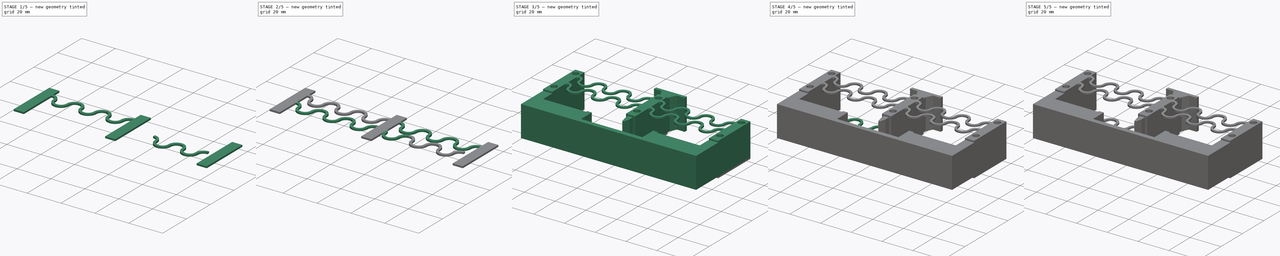
[diagram: build sequence overview — one tinted view per stage of 5, left to right]
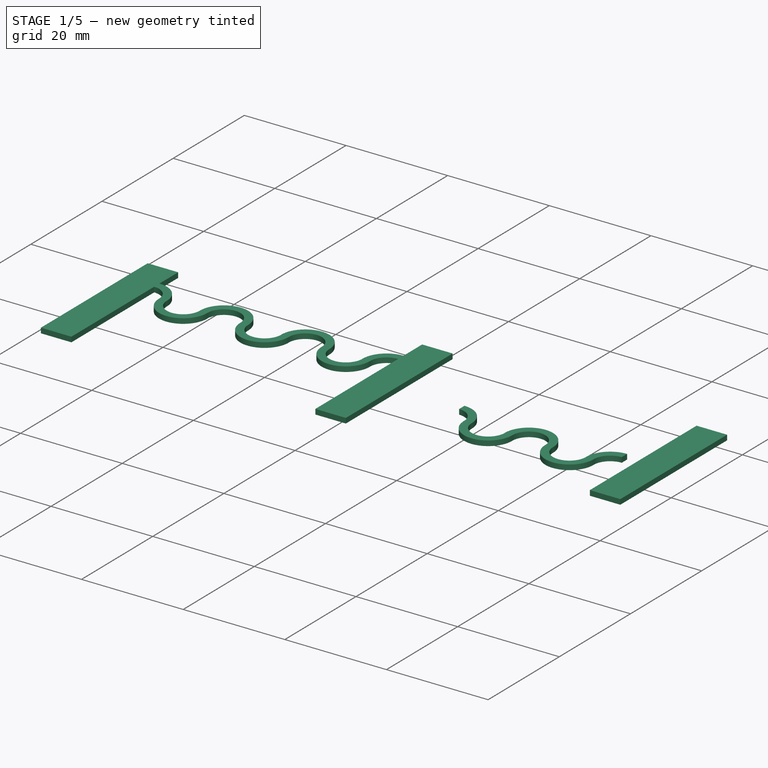
[diagram: stage 1 of 5 — iso view after this stage's code; geometry added in this stage tinted green]
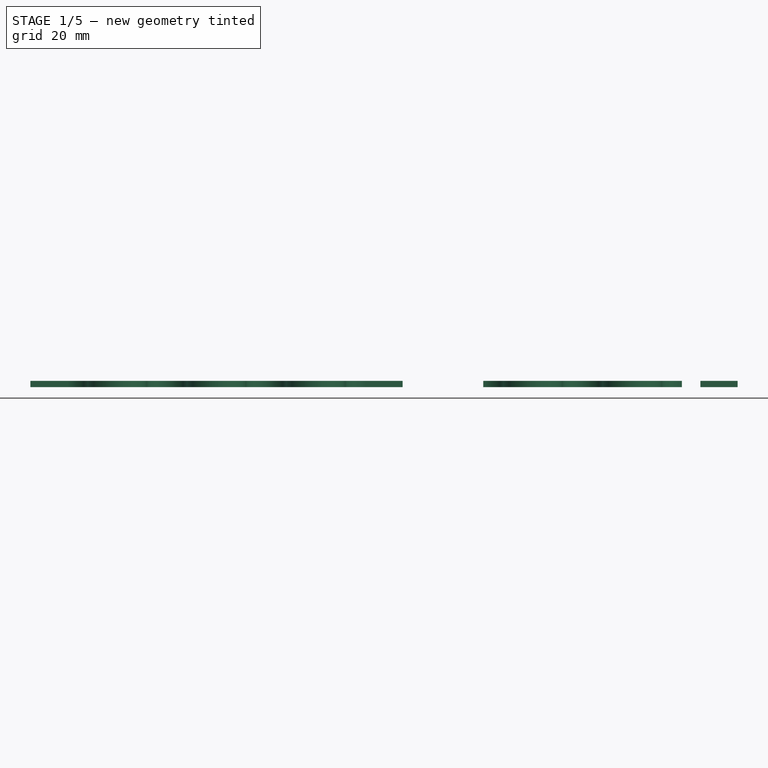
[diagram: stage 1 of 5 — front view after this stage's code; geometry added in this stage tinted green]
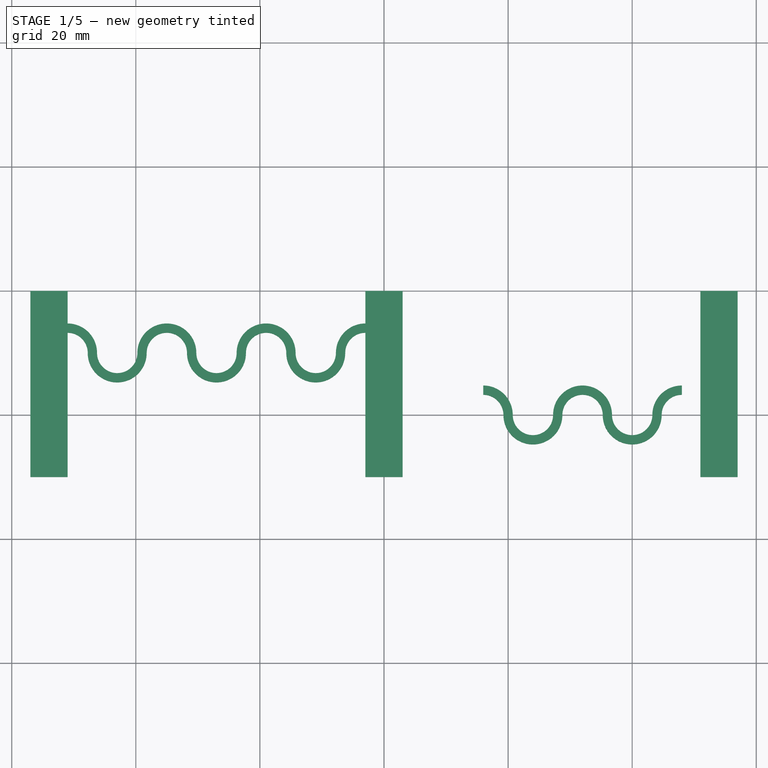
[diagram: stage 1 of 5 — top view after this stage's code; geometry added in this stage tinted green]
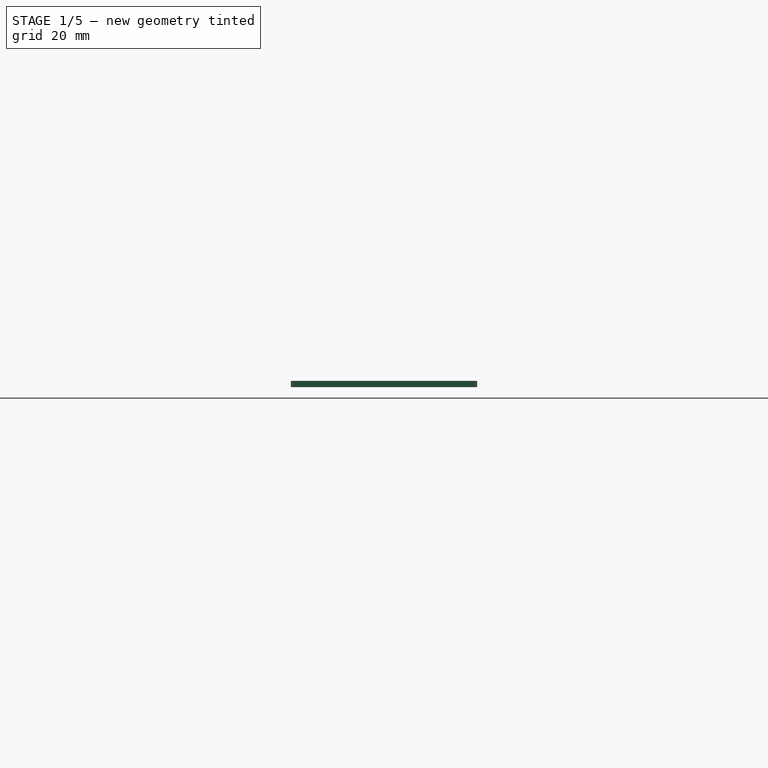
[diagram: stage 1 of 5 — right view after this stage's code; geometry added in this stage tinted green]
FCSTD DOCUMENT  (FreeCAD 0.16R6706 (Git))
Label: sen_a1
License: All rights reserved
LicenseURL: http://en.wikipedia.org/wiki/All_rights_reserved
objects: Sketcher::SketchObject×52, Part::Sweep×24, Part::MultiFuse×10, Part::Box×6, PartDesign::Pocket×2, PartDesign::Fillet×2, PartDesign::Pad×2
note: 102 computed .brp shape members not serialized (recipe doc carries the construction recipe); baked Part::Feature solids carry a one-line shape summary decoded from their .brp

FEATURE [Sketcher::SketchObject] Sketch041
  Placement = pos=(0,4,0) rot=(0.57735,0.57735,0.57735;2.0944rad)
  sketch-geometry (4):
    g0: LineSegment StartX=-0.75 StartY=-0.5 StartZ=0 EndX=0.75 EndY=-0.5 EndZ=0
    g1: LineSegment StartX=0.75 StartY=-0.5 StartZ=0 EndX=0.75 EndY=0.5 EndZ=0
    g2: LineSegment StartX=0.75 StartY=0.5 StartZ=0 EndX=-0.75 EndY=0.5 EndZ=0
    g3: LineSegment StartX=-0.75 StartY=0.5 StartZ=0 EndX=-0.75 EndY=-0.5 EndZ=0
  constraints (12):
    c: Coincident(g0,g1)
    c: Coincident(g1,g2)
    c: Coincident(g2,g3)
    c: Coincident(g3,g0)
    c: Horizontal(g0)
    c: Horizontal(g2)
    c: Vertical(g1)
    c: Vertical(g3)
    c: Symmetric(g1,g2,g-2)
    c: Symmetric(g1,g0,g-1)
    c: DistanceX(g2,g1) = 1.5
    c: DistanceY(g0,g1) = 1
FEATURE [Sketcher::SketchObject] Sketch042
  sketch-geometry (3):
    g0: ArcOfCircle CenterX=0 CenterY=0 CenterZ=0 NormalX=0 NormalY=0 NormalZ=1 Radius=4 StartAngle=6.571e-09 EndAngle=1.5708
    g1: ArcOfCircle CenterX=8 CenterY=0 CenterZ=0 NormalX=0 NormalY=0 NormalZ=1 Radius=4 StartAngle=3.14159 EndAngle=6.28319
    g2: ArcOfCircle CenterX=16 CenterY=0 CenterZ=0 NormalX=0 NormalY=0 NormalZ=1 Radius=4 StartAngle=1.5708 EndAngle=3.14159
  constraints (12):
    c: Coincident(g1,g0)
    c: Coincident(g2,g1)
    c: DistanceX(g-1,g0) = 0
    c: DistanceY(g0,g-1) = 0
    c: DistanceX(g-1,g0) = 4
    c: DistanceX(g0,g1) = 4
    c: DistanceY(g1,g-1) = 0
    c: DistanceY(g-1,g1) = 0
    c: DistanceY(g-1,g2) = 0
    c: DistanceX(g1,g1) = 4
    c: DistanceX(g1,g2) = 4
    c: DistanceX(g2,g2) = 0
FEATURE [Part::Sweep] Sweep019
  Frenet = true
  Placement = pos=(16,0,0) rot=(0,0,1;0rad)
  Sections = -> [Sketch041]
  Solid = true
  Spine = -> Sketch042 [Edge3,Edge2,Edge1]
  Transition = 1
FEATURE [Sketcher::SketchObject] Sketch043
  Placement = pos=(0,4,0) rot=(0.57735,0.57735,0.57735;2.0944rad)
  sketch-geometry (4):
    g0: LineSegment StartX=-0.75 StartY=-0.5 StartZ=0 EndX=0.75 EndY=-0.5 EndZ=0
    g1: LineSegment StartX=0.75 StartY=-0.5 StartZ=0 EndX=0.75 EndY=0.5 EndZ=0
    g2: LineSegment StartX=0.75 StartY=0.5 StartZ=0 EndX=-0.75 EndY=0.5 EndZ=0
    g3: LineSegment StartX=-0.75 StartY=0.5 StartZ=0 EndX=-0.75 EndY=-0.5 EndZ=0
  constraints (12):
    c: Coincident(g0,g1)
    c: Coincident(g1,g2)
    c: Coincident(g2,g3)
    c: Coincident(g3,g0)
    c: Horizontal(g0)
    c: Horizontal(g2)
    c: Vertical(g1)
    c: Vertical(g3)
    c: Symmetric(g1,g2,g-2)
    c: Symmetric(g1,g0,g-1)
    c: DistanceX(g2,g1) = 1.5
    c: DistanceY(g0,g1) = 1
FEATURE [Sketcher::SketchObject] Sketch044
  sketch-geometry (3):
    g0: ArcOfCircle CenterX=0 CenterY=0 CenterZ=0 NormalX=0 NormalY=0 NormalZ=1 Radius=4 StartAngle=6.571e-09 EndAngle=1.5708
    g1: ArcOfCircle CenterX=8 CenterY=0 CenterZ=0 NormalX=0 NormalY=0 NormalZ=1 Radius=4 StartAngle=3.14159 EndAngle=6.28319
    g2: ArcOfCircle CenterX=16 CenterY=0 CenterZ=0 NormalX=0 NormalY=0 NormalZ=1 Radius=4 StartAngle=1.5708 EndAngle=3.14159
  constraints (12):
    c: Coincident(g1,g0)
    c: Coincident(g2,g1)
    c: DistanceX(g-1,g0) = 0
    c: DistanceY(g0,g-1) = 0
    c: DistanceX(g-1,g0) = 4
    c: DistanceX(g0,g1) = 4
    c: DistanceY(g1,g-1) = 0
    c: DistanceY(g-1,g1) = 0
    c: DistanceY(g-1,g2) = 0
    c: DistanceX(g1,g1) = 4
    c: DistanceX(g1,g2) = 4
    c: DistanceX(g2,g2) = 0
FEATURE [Part::Sweep] Sweep020
  Frenet = true
  Placement = pos=(32,0,0) rot=(0,0,1;0rad)
  Sections = -> [Sketch043]
  Solid = true
  Spine = -> Sketch044 [Edge3,Edge2,Edge1]
  Transition = 1
FEATURE [Sketcher::SketchObject] Sketch045
  Placement = pos=(0,4,0) rot=(0.57735,0.57735,0.57735;2.0944rad)
  sketch-geometry (4):
    g0: LineSegment StartX=-0.75 StartY=-0.5 StartZ=0 EndX=0.75 EndY=-0.5 EndZ=0
    g1: LineSegment StartX=0.75 StartY=-0.5 StartZ=0 EndX=0.75 EndY=0.5 EndZ=0
    g2: LineSegment StartX=0.75 StartY=0.5 StartZ=0 EndX=-0.75 EndY=0.5 EndZ=0
    g3: LineSegment StartX=-0.75 StartY=0.5 StartZ=0 EndX=-0.75 EndY=-0.5 EndZ=0
  constraints (12):
    c: Coincident(g0,g1)
    c: Coincident(g1,g2)
    c: Coincident(g2,g3)
    c: Coincident(g3,g0)
    c: Horizontal(g0)
    c: Horizontal(g2)
    c: Vertical(g1)
    c: Vertical(g3)
    c: Symmetric(g1,g2,g-2)
    c: Symmetric(g1,g0,g-1)
    c: DistanceX(g2,g1) = 1.5
    c: DistanceY(g0,g1) = 1
FEATURE [Sketcher::SketchObject] Sketch046
  sketch-geometry (3):
    g0: ArcOfCircle CenterX=0 CenterY=0 CenterZ=0 NormalX=0 NormalY=0 NormalZ=1 Radius=4 StartAngle=6.571e-09 EndAngle=1.5708
    g1: ArcOfCircle CenterX=8 CenterY=0 CenterZ=0 NormalX=0 NormalY=0 NormalZ=1 Radius=4 StartAngle=3.14159 EndAngle=6.28319
    g2: ArcOfCircle CenterX=16 CenterY=0 CenterZ=0 NormalX=0 NormalY=0 NormalZ=1 Radius=4 StartAngle=1.5708 EndAngle=3.14159
  constraints (12):
    c: Coincident(g1,g0)
    c: Coincident(g2,g1)
    c: DistanceX(g-1,g0) = 0
    c: DistanceY(g0,g-1) = 0
    c: DistanceX(g-1,g0) = 4
    c: DistanceX(g0,g1) = 4
    c: DistanceY(g1,g-1) = 0
    c: DistanceY(g-1,g1) = 0
    c: DistanceY(g-1,g2) = 0
    c: DistanceX(g1,g1) = 4
    c: DistanceX(g1,g2) = 4
    c: DistanceX(g2,g2) = 0
FEATURE [Part::Sweep] Sweep021
  Frenet = true
  Sections = -> [Sketch045]
  Solid = true
  Spine = -> Sketch046 [Edge3,Edge2,Edge1]
  Transition = 1
FEATURE [Sketcher::SketchObject] Sketch047
  Placement = pos=(0,4,0) rot=(0.57735,0.57735,0.57735;2.0944rad)
  sketch-geometry (4):
    g0: LineSegment StartX=-0.75 StartY=-0.5 StartZ=0 EndX=0.75 EndY=-0.5 EndZ=0
    g1: LineSegment StartX=0.75 StartY=-0.5 StartZ=0 EndX=0.75 EndY=0.5 EndZ=0
    g2: LineSegment StartX=0.75 StartY=0.5 StartZ=0 EndX=-0.75 EndY=0.5 EndZ=0
    g3: LineSegment StartX=-0.75 StartY=0.5 StartZ=0 EndX=-0.75 EndY=-0.5 EndZ=0
  constraints (12):
    c: Coincident(g0,g1)
    c: Coincident(g1,g2)
    c: Coincident(g2,g3)
    c: Coincident(g3,g0)
    c: Horizontal(g0)
    c: Horizontal(g2)
    c: Vertical(g1)
    c: Vertical(g3)
    c: Symmetric(g1,g2,g-2)
    c: Symmetric(g1,g0,g-1)
    c: DistanceX(g2,g1) = 1.5
    c: DistanceY(g0,g1) = 1
FEATURE [Sketcher::SketchObject] Sketch048
  sketch-geometry (3):
    g0: ArcOfCircle CenterX=0 CenterY=0 CenterZ=0 NormalX=0 NormalY=0 NormalZ=1 Radius=4 StartAngle=6.571e-09 EndAngle=1.5708
    g1: ArcOfCircle CenterX=8 CenterY=0 CenterZ=0 NormalX=0 NormalY=0 NormalZ=1 Radius=4 StartAngle=3.14159 EndAngle=6.28319
    g2: ArcOfCircle CenterX=16 CenterY=0 CenterZ=0 NormalX=0 NormalY=0 NormalZ=1 Radius=4 StartAngle=1.5708 EndAngle=3.14159
  constraints (12):
    c: Coincident(g1,g0)
    c: Coincident(g2,g1)
    c: DistanceX(g-1,g0) = 0
    c: DistanceY(g0,g-1) = 0
    c: DistanceX(g-1,g0) = 4
    c: DistanceX(g0,g1) = 4
    c: DistanceY(g1,g-1) = 0
    c: DistanceY(g-1,g1) = 0
    c: DistanceY(g-1,g2) = 0
    c: DistanceX(g1,g1) = 4
    c: DistanceX(g1,g2) = 4
    c: DistanceX(g2,g2) = 0
FEATURE [Part::Sweep] Sweep022
  Frenet = true
  Placement = pos=(16,0,0) rot=(0,0,1;0rad)
  Sections = -> [Sketch047]
  Solid = true
  Spine = -> Sketch048 [Edge3,Edge2,Edge1]
  Transition = 1
FEATURE [Sketcher::SketchObject] Sketch049
  Placement = pos=(0,4,0) rot=(0.57735,0.57735,0.57735;2.0944rad)
  sketch-geometry (4):
    g0: LineSegment StartX=-0.75 StartY=-0.5 StartZ=0 EndX=0.75 EndY=-0.5 EndZ=0
    g1: LineSegment StartX=0.75 StartY=-0.5 StartZ=0 EndX=0.75 EndY=0.5 EndZ=0
    g2: LineSegment StartX=0.75 StartY=0.5 StartZ=0 EndX=-0.75 EndY=0.5 EndZ=0
    g3: LineSegment StartX=-0.75 StartY=0.5 StartZ=0 EndX=-0.75 EndY=-0.5 EndZ=0
  constraints (12):
    c: Coincident(g0,g1)
    c: Coincident(g1,g2)
    c: Coincident(g2,g3)
    c: Coincident(g3,g0)
    c: Horizontal(g0)
    c: Horizontal(g2)
    c: Vertical(g1)
    c: Vertical(g3)
    c: Symmetric(g1,g2,g-2)
    c: Symmetric(g1,g0,g-1)
    c: DistanceX(g2,g1) = 1.5
    c: DistanceY(g0,g1) = 1
FEATURE [Sketcher::SketchObject] Sketch050
  sketch-geometry (3):
    g0: ArcOfCircle CenterX=0 CenterY=0 CenterZ=0 NormalX=0 NormalY=0 NormalZ=1 Radius=4 StartAngle=6.571e-09 EndAngle=1.5708
    g1: ArcOfCircle CenterX=8 CenterY=0 CenterZ=0 NormalX=0 NormalY=0 NormalZ=1 Radius=4 StartAngle=3.14159 EndAngle=6.28319
    g2: ArcOfCircle CenterX=16 CenterY=0 CenterZ=0 NormalX=0 NormalY=0 NormalZ=1 Radius=4 StartAngle=1.5708 EndAngle=3.14159
  constraints (12):
    c: Coincident(g1,g0)
    c: Coincident(g2,g1)
    c: DistanceX(g-1,g0) = 0
    c: DistanceY(g0,g-1) = 0
    c: DistanceX(g-1,g0) = 4
    c: DistanceX(g0,g1) = 4
    c: DistanceY(g1,g-1) = 0
    c: DistanceY(g-1,g1) = 0
    c: DistanceY(g-1,g2) = 0
    c: DistanceX(g1,g1) = 4
    c: DistanceX(g1,g2) = 4
    c: DistanceX(g2,g2) = 0
FEATURE [Part::Sweep] Sweep023
  Frenet = true
  Placement = pos=(32,0,0) rot=(0,0,1;0rad)
  Sections = -> [Sketch049]
  Solid = true
  Spine = -> Sketch050 [Edge3,Edge2,Edge1]
  Transition = 1
FEATURE [Part::MultiFuse] Fusion008
  Placement = pos=(-51,10,0) rot=(0,0,1;0rad)
  Shapes = -> [Sweep021,Sweep022,Sweep023]
FEATURE [Part::Box] Box003  label="Cube003"
  Height = 1
  Length = 6
  Placement = pos=(-3,-10,-0.5) rot=(0,0,1;0rad)
  Width = 30
FEATURE [Part::Box] Box004  label="Cube004"
  Height = 1
  Length = 6
  Placement = pos=(51,-10,-0.5) rot=(0,0,1;0rad)
  Width = 30
FEATURE [Part::Box] Box005  label="Cube005"
  Height = 1
  Length = 6
  Placement = pos=(-57,-10,-0.5) rot=(0,0,1;0rad)
  Width = 30
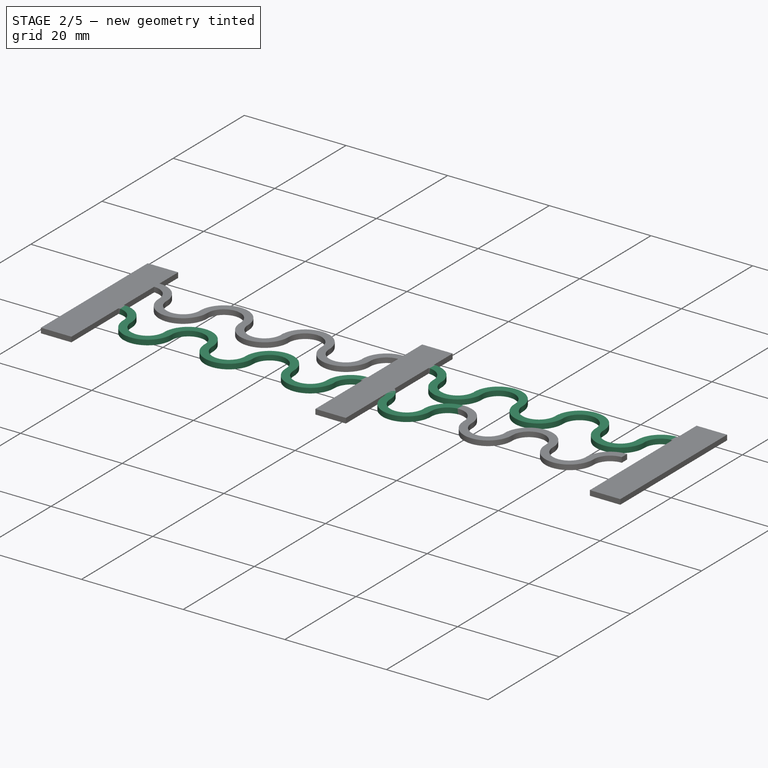
[diagram: stage 2 of 5 — iso view after this stage's code; geometry added in this stage tinted green]
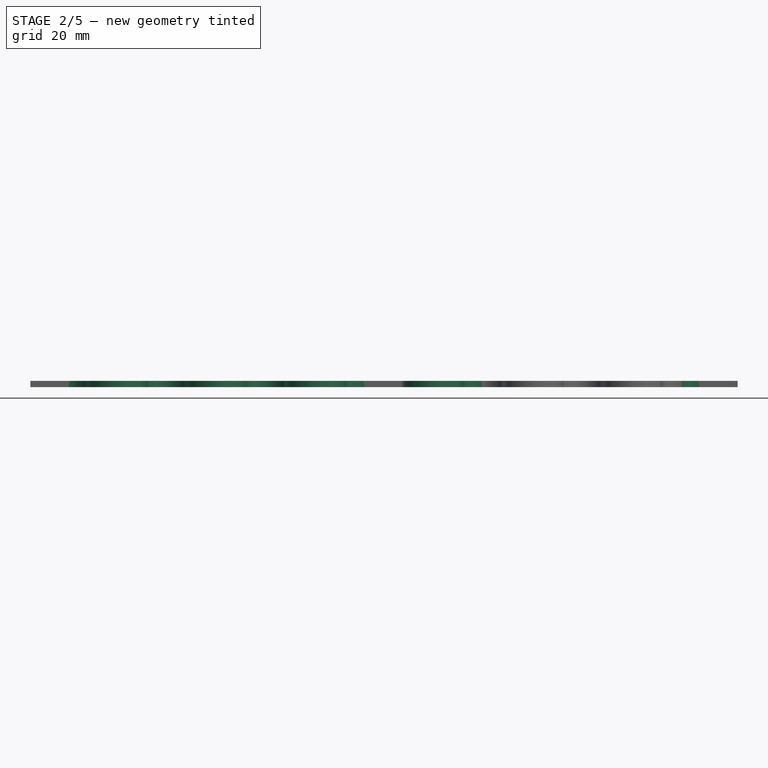
[diagram: stage 2 of 5 — front view after this stage's code; geometry added in this stage tinted green]
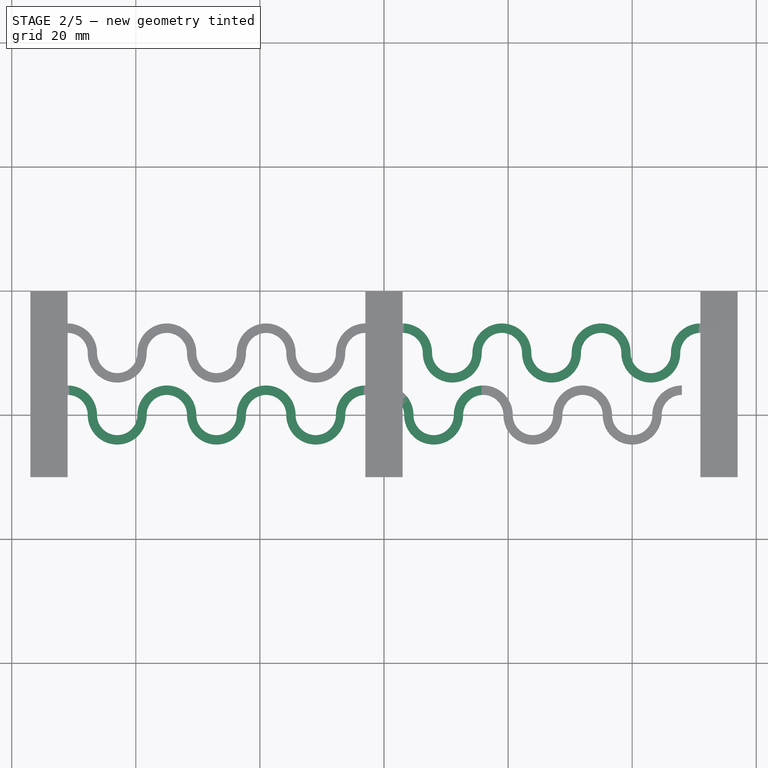
[diagram: stage 2 of 5 — top view after this stage's code; geometry added in this stage tinted green]
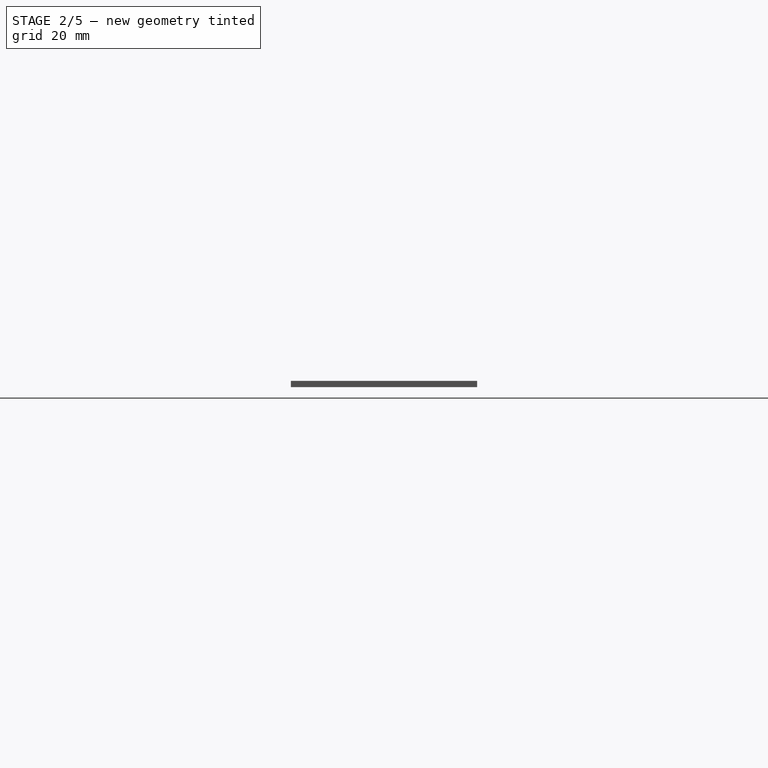
[diagram: stage 2 of 5 — right view after this stage's code; geometry added in this stage tinted green]
FEATURE [Sketcher::SketchObject] Sketch027
  Placement = pos=(0,4,0) rot=(0.57735,0.57735,0.57735;2.0944rad)
  sketch-geometry (4):
    g0: LineSegment StartX=-0.75 StartY=-0.5 StartZ=0 EndX=0.75 EndY=-0.5 EndZ=0
    g1: LineSegment StartX=0.75 StartY=-0.5 StartZ=0 EndX=0.75 EndY=0.5 EndZ=0
    g2: LineSegment StartX=0.75 StartY=0.5 StartZ=0 EndX=-0.75 EndY=0.5 EndZ=0
    g3: LineSegment StartX=-0.75 StartY=0.5 StartZ=0 EndX=-0.75 EndY=-0.5 EndZ=0
  constraints (12):
    c: Coincident(g0,g1)
    c: Coincident(g1,g2)
    c: Coincident(g2,g3)
    c: Coincident(g3,g0)
    c: Horizontal(g0)
    c: Horizontal(g2)
    c: Vertical(g1)
    c: Vertical(g3)
    c: Symmetric(g1,g2,g-2)
    c: Symmetric(g1,g0,g-1)
    c: DistanceX(g2,g1) = 1.5
    c: DistanceY(g0,g1) = 1
FEATURE [Sketcher::SketchObject] Sketch028
  sketch-geometry (3):
    g0: ArcOfCircle CenterX=0 CenterY=0 CenterZ=0 NormalX=0 NormalY=0 NormalZ=1 Radius=4 StartAngle=6.571e-09 EndAngle=1.5708
    g1: ArcOfCircle CenterX=8 CenterY=0 CenterZ=0 NormalX=0 NormalY=0 NormalZ=1 Radius=4 StartAngle=3.14159 EndAngle=6.28319
    g2: ArcOfCircle CenterX=16 CenterY=0 CenterZ=0 NormalX=0 NormalY=0 NormalZ=1 Radius=4 StartAngle=1.5708 EndAngle=3.14159
  constraints (12):
    c: Coincident(g1,g0)
    c: Coincident(g2,g1)
    c: DistanceX(g-1,g0) = 0
    c: DistanceY(g0,g-1) = 0
    c: DistanceX(g-1,g0) = 4
    c: DistanceX(g0,g1) = 4
    c: DistanceY(g1,g-1) = 0
    c: DistanceY(g-1,g1) = 0
    c: DistanceY(g-1,g2) = 0
    c: DistanceX(g1,g1) = 4
    c: DistanceX(g1,g2) = 4
    c: DistanceX(g2,g2) = 0
FEATURE [Part::Sweep] Sweep012
  Frenet = true
  Sections = -> [Sketch027]
  Solid = true
  Spine = -> Sketch028 [Edge3,Edge2,Edge1]
  Transition = 1
FEATURE [Sketcher::SketchObject] Sketch029
  Placement = pos=(0,4,0) rot=(0.57735,0.57735,0.57735;2.0944rad)
  sketch-geometry (4):
    g0: LineSegment StartX=-0.75 StartY=-0.5 StartZ=0 EndX=0.75 EndY=-0.5 EndZ=0
    g1: LineSegment StartX=0.75 StartY=-0.5 StartZ=0 EndX=0.75 EndY=0.5 EndZ=0
    g2: LineSegment StartX=0.75 StartY=0.5 StartZ=0 EndX=-0.75 EndY=0.5 EndZ=0
    g3: LineSegment StartX=-0.75 StartY=0.5 StartZ=0 EndX=-0.75 EndY=-0.5 EndZ=0
  constraints (12):
    c: Coincident(g0,g1)
    c: Coincident(g1,g2)
    c: Coincident(g2,g3)
    c: Coincident(g3,g0)
    c: Horizontal(g0)
    c: Horizontal(g2)
    c: Vertical(g1)
    c: Vertical(g3)
    c: Symmetric(g1,g2,g-2)
    c: Symmetric(g1,g0,g-1)
    c: DistanceX(g2,g1) = 1.5
    c: DistanceY(g0,g1) = 1
FEATURE [Sketcher::SketchObject] Sketch030
  sketch-geometry (3):
    g0: ArcOfCircle CenterX=0 CenterY=0 CenterZ=0 NormalX=0 NormalY=0 NormalZ=1 Radius=4 StartAngle=6.571e-09 EndAngle=1.5708
    g1: ArcOfCircle CenterX=8 CenterY=0 CenterZ=0 NormalX=0 NormalY=0 NormalZ=1 Radius=4 StartAngle=3.14159 EndAngle=6.28319
    g2: ArcOfCircle CenterX=16 CenterY=0 CenterZ=0 NormalX=0 NormalY=0 NormalZ=1 Radius=4 StartAngle=1.5708 EndAngle=3.14159
  constraints (12):
    c: Coincident(g1,g0)
    c: Coincident(g2,g1)
    c: DistanceX(g-1,g0) = 0
    c: DistanceY(g0,g-1) = 0
    c: DistanceX(g-1,g0) = 4
    c: DistanceX(g0,g1) = 4
    c: DistanceY(g1,g-1) = 0
    c: DistanceY(g-1,g1) = 0
    c: DistanceY(g-1,g2) = 0
    c: DistanceX(g1,g1) = 4
    c: DistanceX(g1,g2) = 4
    c: DistanceX(g2,g2) = 0
FEATURE [Part::Sweep] Sweep013
  Frenet = true
  Placement = pos=(16,0,0) rot=(0,0,1;0rad)
  Sections = -> [Sketch029]
  Solid = true
  Spine = -> Sketch030 [Edge3,Edge2,Edge1]
  Transition = 1
FEATURE [Sketcher::SketchObject] Sketch031
  Placement = pos=(0,4,0) rot=(0.57735,0.57735,0.57735;2.0944rad)
  sketch-geometry (4):
    g0: LineSegment StartX=-0.75 StartY=-0.5 StartZ=0 EndX=0.75 EndY=-0.5 EndZ=0
    g1: LineSegment StartX=0.75 StartY=-0.5 StartZ=0 EndX=0.75 EndY=0.5 EndZ=0
    g2: LineSegment StartX=0.75 StartY=0.5 StartZ=0 EndX=-0.75 EndY=0.5 EndZ=0
    g3: LineSegment StartX=-0.75 StartY=0.5 StartZ=0 EndX=-0.75 EndY=-0.5 EndZ=0
  constraints (12):
    c: Coincident(g0,g1)
    c: Coincident(g1,g2)
    c: Coincident(g2,g3)
    c: Coincident(g3,g0)
    c: Horizontal(g0)
    c: Horizontal(g2)
    c: Vertical(g1)
    c: Vertical(g3)
    c: Symmetric(g1,g2,g-2)
    c: Symmetric(g1,g0,g-1)
    c: DistanceX(g2,g1) = 1.5
    c: DistanceY(g0,g1) = 1
FEATURE [Sketcher::SketchObject] Sketch032
  sketch-geometry (3):
    g0: ArcOfCircle CenterX=0 CenterY=0 CenterZ=0 NormalX=0 NormalY=0 NormalZ=1 Radius=4 StartAngle=6.571e-09 EndAngle=1.5708
    g1: ArcOfCircle CenterX=8 CenterY=0 CenterZ=0 NormalX=0 NormalY=0 NormalZ=1 Radius=4 StartAngle=3.14159 EndAngle=6.28319
    g2: ArcOfCircle CenterX=16 CenterY=0 CenterZ=0 NormalX=0 NormalY=0 NormalZ=1 Radius=4 StartAngle=1.5708 EndAngle=3.14159
  constraints (12):
    c: Coincident(g1,g0)
    c: Coincident(g2,g1)
    c: DistanceX(g-1,g0) = 0
    c: DistanceY(g0,g-1) = 0
    c: DistanceX(g-1,g0) = 4
    c: DistanceX(g0,g1) = 4
    c: DistanceY(g1,g-1) = 0
    c: DistanceY(g-1,g1) = 0
    c: DistanceY(g-1,g2) = 0
    c: DistanceX(g1,g1) = 4
    c: DistanceX(g1,g2) = 4
    c: DistanceX(g2,g2) = 0
FEATURE [Part::Sweep] Sweep014
  Frenet = true
  Placement = pos=(32,0,0) rot=(0,0,1;0rad)
  Sections = -> [Sketch031]
  Solid = true
  Spine = -> Sketch032 [Edge3,Edge2,Edge1]
  Transition = 1
FEATURE [Sketcher::SketchObject] Sketch033
  Placement = pos=(0,4,0) rot=(0.57735,0.57735,0.57735;2.0944rad)
  sketch-geometry (4):
    g0: LineSegment StartX=-0.75 StartY=-0.5 StartZ=0 EndX=0.75 EndY=-0.5 EndZ=0
    g1: LineSegment StartX=0.75 StartY=-0.5 StartZ=0 EndX=0.75 EndY=0.5 EndZ=0
    g2: LineSegment StartX=0.75 StartY=0.5 StartZ=0 EndX=-0.75 EndY=0.5 EndZ=0
    g3: LineSegment StartX=-0.75 StartY=0.5 StartZ=0 EndX=-0.75 EndY=-0.5 EndZ=0
  constraints (12):
    c: Coincident(g0,g1)
    c: Coincident(g1,g2)
    c: Coincident(g2,g3)
    c: Coincident(g3,g0)
    c: Horizontal(g0)
    c: Horizontal(g2)
    c: Vertical(g1)
    c: Vertical(g3)
    c: Symmetric(g1,g2,g-2)
    c: Symmetric(g1,g0,g-1)
    c: DistanceX(g2,g1) = 1.5
    c: DistanceY(g0,g1) = 1
FEATURE [Sketcher::SketchObject] Sketch034
  sketch-geometry (3):
    g0: ArcOfCircle CenterX=0 CenterY=0 CenterZ=0 NormalX=0 NormalY=0 NormalZ=1 Radius=4 StartAngle=6.571e-09 EndAngle=1.5708
    g1: ArcOfCircle CenterX=8 CenterY=0 CenterZ=0 NormalX=0 NormalY=0 NormalZ=1 Radius=4 StartAngle=3.14159 EndAngle=6.28319
    g2: ArcOfCircle CenterX=16 CenterY=0 CenterZ=0 NormalX=0 NormalY=0 NormalZ=1 Radius=4 StartAngle=1.5708 EndAngle=3.14159
  constraints (12):
    c: Coincident(g1,g0)
    c: Coincident(g2,g1)
    c: DistanceX(g-1,g0) = 0
    c: DistanceY(g0,g-1) = 0
    c: DistanceX(g-1,g0) = 4
    c: DistanceX(g0,g1) = 4
    c: DistanceY(g1,g-1) = 0
    c: DistanceY(g-1,g1) = 0
    c: DistanceY(g-1,g2) = 0
    c: DistanceX(g1,g1) = 4
    c: DistanceX(g1,g2) = 4
    c: DistanceX(g2,g2) = 0
FEATURE [Part::Sweep] Sweep015
  Frenet = true
  Sections = -> [Sketch033]
  Solid = true
  Spine = -> Sketch034 [Edge3,Edge2,Edge1]
  Transition = 1
FEATURE [Sketcher::SketchObject] Sketch035
  Placement = pos=(0,4,0) rot=(0.57735,0.57735,0.57735;2.0944rad)
  sketch-geometry (4):
    g0: LineSegment StartX=-0.75 StartY=-0.5 StartZ=0 EndX=0.75 EndY=-0.5 EndZ=0
    g1: LineSegment StartX=0.75 StartY=-0.5 StartZ=0 EndX=0.75 EndY=0.5 EndZ=0
    g2: LineSegment StartX=0.75 StartY=0.5 StartZ=0 EndX=-0.75 EndY=0.5 EndZ=0
    g3: LineSegment StartX=-0.75 StartY=0.5 StartZ=0 EndX=-0.75 EndY=-0.5 EndZ=0
  constraints (12):
    c: Coincident(g0,g1)
    c: Coincident(g1,g2)
    c: Coincident(g2,g3)
    c: Coincident(g3,g0)
    c: Horizontal(g0)
    c: Horizontal(g2)
    c: Vertical(g1)
    c: Vertical(g3)
    c: Symmetric(g1,g2,g-2)
    c: Symmetric(g1,g0,g-1)
    c: DistanceX(g2,g1) = 1.5
    c: DistanceY(g0,g1) = 1
FEATURE [Sketcher::SketchObject] Sketch036
  sketch-geometry (3):
    g0: ArcOfCircle CenterX=0 CenterY=0 CenterZ=0 NormalX=0 NormalY=0 NormalZ=1 Radius=4 StartAngle=6.571e-09 EndAngle=1.5708
    g1: ArcOfCircle CenterX=8 CenterY=0 CenterZ=0 NormalX=0 NormalY=0 NormalZ=1 Radius=4 StartAngle=3.14159 EndAngle=6.28319
    g2: ArcOfCircle CenterX=16 CenterY=0 CenterZ=0 NormalX=0 NormalY=0 NormalZ=1 Radius=4 StartAngle=1.5708 EndAngle=3.14159
  constraints (12):
    c: Coincident(g1,g0)
    c: Coincident(g2,g1)
    c: DistanceX(g-1,g0) = 0
    c: DistanceY(g0,g-1) = 0
    c: DistanceX(g-1,g0) = 4
    c: DistanceX(g0,g1) = 4
    c: DistanceY(g1,g-1) = 0
    c: DistanceY(g-1,g1) = 0
    c: DistanceY(g-1,g2) = 0
    c: DistanceX(g1,g1) = 4
    c: DistanceX(g1,g2) = 4
    c: DistanceX(g2,g2) = 0
FEATURE [Part::Sweep] Sweep016
  Frenet = true
  Placement = pos=(16,0,0) rot=(0,0,1;0rad)
  Sections = -> [Sketch035]
  Solid = true
  Spine = -> Sketch036 [Edge3,Edge2,Edge1]
  Transition = 1
FEATURE [Sketcher::SketchObject] Sketch037
  Placement = pos=(0,4,0) rot=(0.57735,0.57735,0.57735;2.0944rad)
  sketch-geometry (4):
    g0: LineSegment StartX=-0.75 StartY=-0.5 StartZ=0 EndX=0.75 EndY=-0.5 EndZ=0
    g1: LineSegment StartX=0.75 StartY=-0.5 StartZ=0 EndX=0.75 EndY=0.5 EndZ=0
    g2: LineSegment StartX=0.75 StartY=0.5 StartZ=0 EndX=-0.75 EndY=0.5 EndZ=0
    g3: LineSegment StartX=-0.75 StartY=0.5 StartZ=0 EndX=-0.75 EndY=-0.5 EndZ=0
  constraints (12):
    c: Coincident(g0,g1)
    c: Coincident(g1,g2)
    c: Coincident(g2,g3)
    c: Coincident(g3,g0)
    c: Horizontal(g0)
    c: Horizontal(g2)
    c: Vertical(g1)
    c: Vertical(g3)
    c: Symmetric(g1,g2,g-2)
    c: Symmetric(g1,g0,g-1)
    c: DistanceX(g2,g1) = 1.5
    c: DistanceY(g0,g1) = 1
FEATURE [Sketcher::SketchObject] Sketch038
  sketch-geometry (3):
    g0: ArcOfCircle CenterX=0 CenterY=0 CenterZ=0 NormalX=0 NormalY=0 NormalZ=1 Radius=4 StartAngle=6.571e-09 EndAngle=1.5708
    g1: ArcOfCircle CenterX=8 CenterY=0 CenterZ=0 NormalX=0 NormalY=0 NormalZ=1 Radius=4 StartAngle=3.14159 EndAngle=6.28319
    g2: ArcOfCircle CenterX=16 CenterY=0 CenterZ=0 NormalX=0 NormalY=0 NormalZ=1 Radius=4 StartAngle=1.5708 EndAngle=3.14159
  constraints (12):
    c: Coincident(g1,g0)
    c: Coincident(g2,g1)
    c: DistanceX(g-1,g0) = 0
    c: DistanceY(g0,g-1) = 0
    c: DistanceX(g-1,g0) = 4
    c: DistanceX(g0,g1) = 4
    c: DistanceY(g1,g-1) = 0
    c: DistanceY(g-1,g1) = 0
    c: DistanceY(g-1,g2) = 0
    c: DistanceX(g1,g1) = 4
    c: DistanceX(g1,g2) = 4
    c: DistanceX(g2,g2) = 0
FEATURE [Part::Sweep] Sweep017
  Frenet = true
  Placement = pos=(32,0,0) rot=(0,0,1;0rad)
  Sections = -> [Sketch037]
  Solid = true
  Spine = -> Sketch038 [Edge3,Edge2,Edge1]
  Transition = 1
FEATURE [Part::MultiFuse] Fusion006
  Placement = pos=(3,10,0) rot=(0,0,1;0rad)
  Shapes = -> [Sweep015,Sweep016,Sweep017]
FEATURE [Sketcher::SketchObject] Sketch039
  Placement = pos=(0,4,0) rot=(0.57735,0.57735,0.57735;2.0944rad)
  sketch-geometry (4):
    g0: LineSegment StartX=-0.75 StartY=-0.5 StartZ=0 EndX=0.75 EndY=-0.5 EndZ=0
    g1: LineSegment StartX=0.75 StartY=-0.5 StartZ=0 EndX=0.75 EndY=0.5 EndZ=0
    g2: LineSegment StartX=0.75 StartY=0.5 StartZ=0 EndX=-0.75 EndY=0.5 EndZ=0
    g3: LineSegment StartX=-0.75 StartY=0.5 StartZ=0 EndX=-0.75 EndY=-0.5 EndZ=0
  constraints (12):
    c: Coincident(g0,g1)
    c: Coincident(g1,g2)
    c: Coincident(g2,g3)
    c: Coincident(g3,g0)
    c: Horizontal(g0)
    c: Horizontal(g2)
    c: Vertical(g1)
    c: Vertical(g3)
    c: Symmetric(g1,g2,g-2)
    c: Symmetric(g1,g0,g-1)
    c: DistanceX(g2,g1) = 1.5
    c: DistanceY(g0,g1) = 1
FEATURE [Sketcher::SketchObject] Sketch040
  sketch-geometry (3):
    g0: ArcOfCircle CenterX=0 CenterY=0 CenterZ=0 NormalX=0 NormalY=0 NormalZ=1 Radius=4 StartAngle=6.571e-09 EndAngle=1.5708
    g1: ArcOfCircle CenterX=8 CenterY=0 CenterZ=0 NormalX=0 NormalY=0 NormalZ=1 Radius=4 StartAngle=3.14159 EndAngle=6.28319
    g2: ArcOfCircle CenterX=16 CenterY=0 CenterZ=0 NormalX=0 NormalY=0 NormalZ=1 Radius=4 StartAngle=1.5708 EndAngle=3.14159
  constraints (12):
    c: Coincident(g1,g0)
    c: Coincident(g2,g1)
    c: DistanceX(g-1,g0) = 0
    c: DistanceY(g0,g-1) = 0
    c: DistanceX(g-1,g0) = 4
    c: DistanceX(g0,g1) = 4
    c: DistanceY(g1,g-1) = 0
    c: DistanceY(g-1,g1) = 0
    c: DistanceY(g-1,g2) = 0
    c: DistanceX(g1,g1) = 4
    c: DistanceX(g1,g2) = 4
    c: DistanceX(g2,g2) = 0
FEATURE [Part::Sweep] Sweep018
  Frenet = true
  Sections = -> [Sketch039]
  Solid = true
  Spine = -> Sketch040 [Edge3,Edge2,Edge1]
  Transition = 1
FEATURE [Part::MultiFuse] Fusion007
  Placement = pos=(-51,0,0) rot=(0,0,1;0rad)
  Shapes = -> [Sweep018,Sweep019,Sweep020]
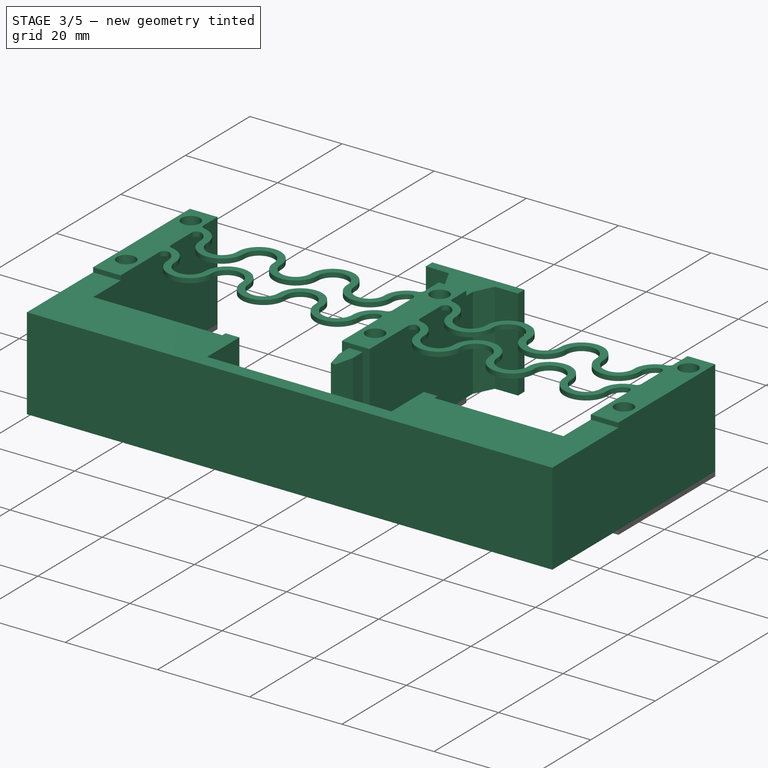
[diagram: stage 3 of 5 — iso view after this stage's code; geometry added in this stage tinted green]
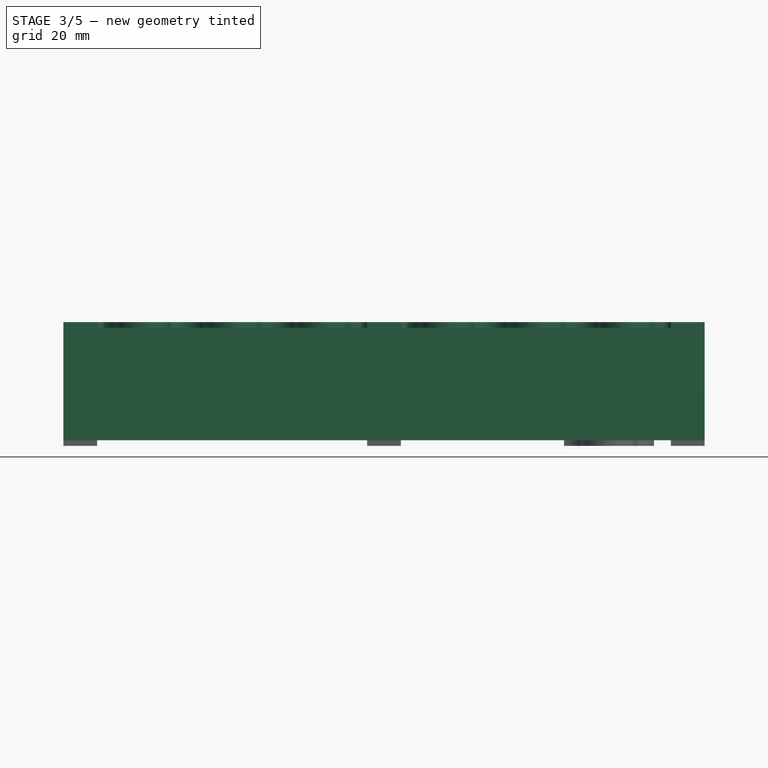
[diagram: stage 3 of 5 — front view after this stage's code; geometry added in this stage tinted green]
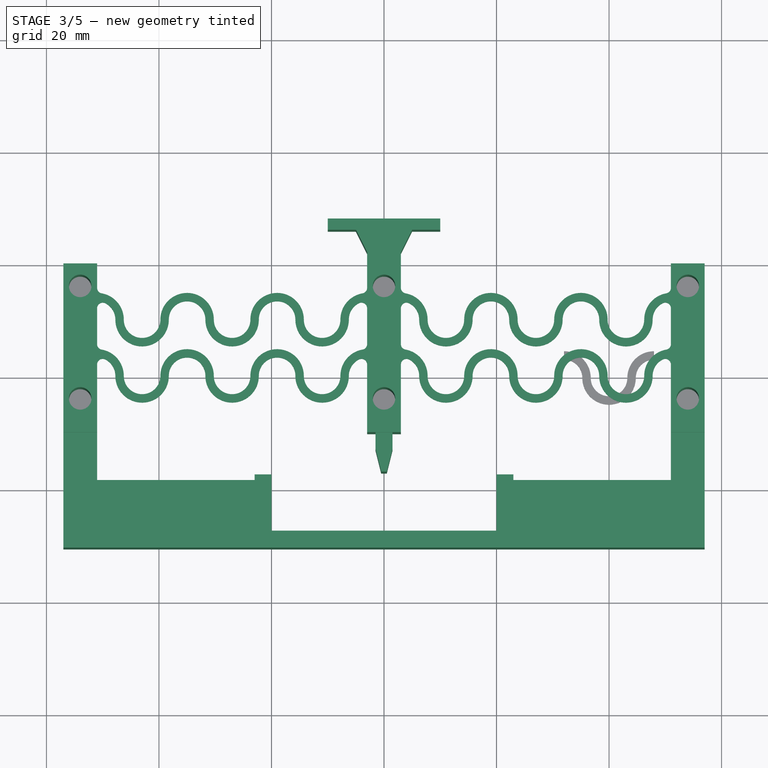
[diagram: stage 3 of 5 — top view after this stage's code; geometry added in this stage tinted green]
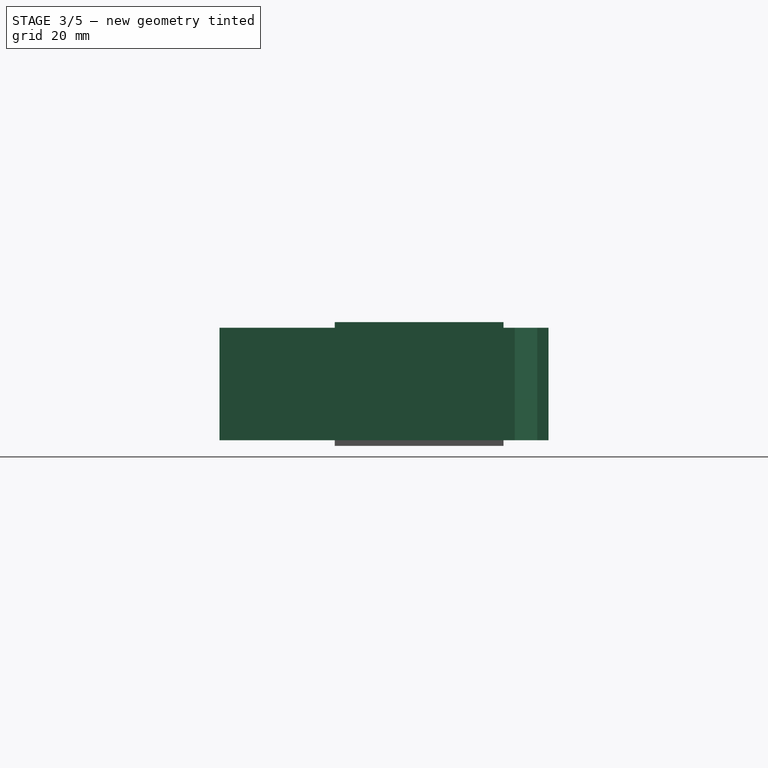
[diagram: stage 3 of 5 — right view after this stage's code; geometry added in this stage tinted green]
FEATURE [Sketcher::SketchObject] Sketch022
  Placement = pos=(0,4,0) rot=(0.57735,0.57735,0.57735;2.0944rad)
  sketch-geometry (4):
    g0: LineSegment StartX=-0.75 StartY=-0.5 StartZ=0 EndX=0.75 EndY=-0.5 EndZ=0
    g1: LineSegment StartX=0.75 StartY=-0.5 StartZ=0 EndX=0.75 EndY=0.5 EndZ=0
    g2: LineSegment StartX=0.75 StartY=0.5 StartZ=0 EndX=-0.75 EndY=0.5 EndZ=0
    g3: LineSegment StartX=-0.75 StartY=0.5 StartZ=0 EndX=-0.75 EndY=-0.5 EndZ=0
  constraints (12):
    c: Coincident(g0,g1)
    c: Coincident(g1,g2)
    c: Coincident(g2,g3)
    c: Coincident(g3,g0)
    c: Horizontal(g0)
    c: Horizontal(g2)
    c: Vertical(g1)
    c: Vertical(g3)
    c: Symmetric(g1,g2,g-2)
    c: Symmetric(g1,g0,g-1)
    c: DistanceX(g2,g1) = 1.5
    c: DistanceY(g0,g1) = 1
FEATURE [Sketcher::SketchObject] Sketch023
  sketch-geometry (3):
    g0: ArcOfCircle CenterX=0 CenterY=0 CenterZ=0 NormalX=0 NormalY=0 NormalZ=1 Radius=4 StartAngle=6.571e-09 EndAngle=1.5708
    g1: ArcOfCircle CenterX=8 CenterY=0 CenterZ=0 NormalX=0 NormalY=0 NormalZ=1 Radius=4 StartAngle=3.14159 EndAngle=6.28319
    g2: ArcOfCircle CenterX=16 CenterY=0 CenterZ=0 NormalX=0 NormalY=0 NormalZ=1 Radius=4 StartAngle=1.5708 EndAngle=3.14159
  constraints (12):
    c: Coincident(g1,g0)
    c: Coincident(g2,g1)
    c: DistanceX(g-1,g0) = 0
    c: DistanceY(g0,g-1) = 0
    c: DistanceX(g-1,g0) = 4
    c: DistanceX(g0,g1) = 4
    c: DistanceY(g1,g-1) = 0
    c: DistanceY(g-1,g1) = 0
    c: DistanceY(g-1,g2) = 0
    c: DistanceX(g1,g1) = 4
    c: DistanceX(g1,g2) = 4
    c: DistanceX(g2,g2) = 0
FEATURE [Part::Sweep] Sweep011
  Frenet = true
  Placement = pos=(32,0,0) rot=(0,0,1;0rad)
  Sections = -> [Sketch022]
  Solid = true
  Spine = -> Sketch023 [Edge3,Edge2,Edge1]
  Transition = 1
FEATURE [Part::Box] Box  label="Cube"
  Height = 1
  Length = 6
  Placement = pos=(-3,-10,-0.5) rot=(0,0,1;0rad)
  Width = 30
FEATURE [Part::Box] Box001  label="Cube001"
  Height = 1
  Length = 6
  Placement = pos=(51,-10,-0.5) rot=(0,0,1;0rad)
  Width = 30
FEATURE [Part::Box] Box002  label="Cube002"
  Height = 1
  Length = 6
  Placement = pos=(-57,-10,-0.5) rot=(0,0,1;0rad)
  Width = 30
FEATURE [Sketcher::SketchObject] Sketch025
  Placement = pos=(0,0,0.5) rot=(0,0,1;0rad)
  sketch-geometry (18):
    g0: LineSegment StartX=3 StartY=22 StartZ=0 EndX=3 EndY=-10 EndZ=0
    g1: LineSegment StartX=3 StartY=-10 StartZ=0 EndX=1.5 EndY=-10 EndZ=0
    g2: LineSegment StartX=1.5 StartY=-10 StartZ=0 EndX=1.5 EndY=-13 EndZ=0
    g3: LineSegment StartX=0.5 StartY=-17 StartZ=0 EndX=-0.5 EndY=-17 EndZ=0
    g4: LineSegment StartX=-0.5 StartY=-17 StartZ=0 EndX=-1.5 EndY=-13 EndZ=0
    g5: LineSegment StartX=-1.5 StartY=-13 StartZ=0 EndX=-1.5 EndY=-10 EndZ=0
    g6: LineSegment StartX=-1.5 StartY=-10 StartZ=0 EndX=-3 EndY=-10 EndZ=0
    g7: LineSegment StartX=-3 StartY=-10 StartZ=0 EndX=-3 EndY=22 EndZ=0
    g8: Circle CenterX=0 CenterY=16 CenterZ=0 NormalX=0 NormalY=0 NormalZ=1 Radius=2
    g9: Circle CenterX=0 CenterY=-4 CenterZ=0 NormalX=0 NormalY=0 NormalZ=1 Radius=2
    g10: LineSegment StartX=0.5 StartY=-17 StartZ=0 EndX=1.5 EndY=-13 EndZ=0
    g11: LineSegment StartX=-3 StartY=22 StartZ=0 EndX=-5 EndY=26 EndZ=0
    g12: LineSegment StartX=-5 StartY=26 StartZ=0 EndX=-10 EndY=26 EndZ=0
    g13: LineSegment StartX=-10 StartY=26 StartZ=0 EndX=-10 EndY=28 EndZ=0
    g14: LineSegment StartX=-10 StartY=28 StartZ=0 EndX=10 EndY=28 EndZ=0
    g15: LineSegment StartX=10 StartY=28 StartZ=0 EndX=10 EndY=26 EndZ=0
    g16: LineSegment StartX=10 StartY=26 StartZ=0 EndX=5 EndY=26 EndZ=0
    g17: LineSegment StartX=5 StartY=26 StartZ=0 EndX=3 EndY=22 EndZ=0
  constraints (54):
    c: Coincident(g0,g1)
    c: Coincident(g1,g2)
    c: Coincident(g3,g4)
    c: Coincident(g5,g6)
    c: Coincident(g6,g7)
    c: DistanceX(g-1,g9) = 0
    c: Radius(g9) = 2
    c: DistanceY(g9,g-1) = 4
    c: DistanceY(g-1,g8) = 16
    c: DistanceX(g8,g-1) = 0
    c: Radius(g8) = 2
    c: Vertical(g7)
    c: Vertical(g0)
    c: Vertical(g5)
    c: Vertical(g2)
    c: DistanceY(g-1,g0) = 22
    c: DistanceY(g0,g-1) = 10
    c: DistanceY(g5,g1) = 0
    c: DistanceY(g3,g2) = 4
    c: DistanceY(g2,g0) = 3
    c: DistanceX(g5,g3) = 1
    c: DistanceX(g3,g3) = 1
    c: DistanceX(g6,g5) = 1.5
    c: Horizontal(g6)
    c: Horizontal(g1)
    c: Horizontal(g3)
    c: Symmetric(g0,g6,g-2)
    c: Coincident(g4,g5)
    c: Coincident(g2,g10)
    c: Coincident(g10,g3)
    c: DistanceY(g4,g2) = 0
    c: Symmetric(g4,g2,g-2)
    c: Symmetric(g3,g3,g-2)
    c: Coincident(g11,g12)
    c: Coincident(g12,g13)
    c: Coincident(g13,g14)
    c: Coincident(g14,g15)
    c: Coincident(g15,g16)
    c: Coincident(g16,g17)
    c: Coincident(g11,g7)
    c: Coincident(g17,g0)
    c: Horizontal(g14)
    c: Horizontal(g16)
    c: Horizontal(g12)
    c: Vertical(g15)
    c: Vertical(g13)
    c: DistanceY(g11,g16) = 0
    c: Symmetric(g11,g16,g-2)
    c: DistanceY(g0,g16) = 4
    c: DistanceY(g15,g14) = 2
    c: DistanceX(g11,g7) = 2
    c: DistanceX(g13,g14) = 20
    c: Symmetric(g13,g14,g-2)
    c: DistanceY(g0,g7) = 0
FEATURE [PartDesign::Pad] Pad
  Length = 20
  Length2 = 100
  Placement = pos=(0,0,0.5) rot=(0,0,1;0rad)
  Sketch = -> Sketch025
  Type = 0
FEATURE [Sketcher::SketchObject] Sketch026
  Placement = pos=(0,0,0.5) rot=(0,0,1;0rad)
  sketch-geometry (20):
    g0: LineSegment StartX=-57 StartY=20 StartZ=0 EndX=-57 EndY=-30.5 EndZ=0
    g1: LineSegment StartX=-57 StartY=-30.5 StartZ=0 EndX=57 EndY=-30.5 EndZ=0
    g2: LineSegment StartX=57 StartY=-30.5 StartZ=0 EndX=57 EndY=20 EndZ=0
    g3: LineSegment StartX=57 StartY=20 StartZ=0 EndX=51 EndY=20 EndZ=0
    g4: LineSegment StartX=51 StartY=20 StartZ=0 EndX=51 EndY=-18.5 EndZ=0
    g5: LineSegment StartX=51 StartY=-18.5 StartZ=0 EndX=23 EndY=-18.5 EndZ=0
    g6: LineSegment StartX=23 StartY=-18.5 StartZ=0 EndX=23 EndY=-17.5 EndZ=0
    g7: LineSegment StartX=23 StartY=-17.5 StartZ=0 EndX=20 EndY=-17.5 EndZ=0
    g8: LineSegment StartX=20 StartY=-17.5 StartZ=0 EndX=20 EndY=-27.5 EndZ=0
    g9: LineSegment StartX=20 StartY=-27.5 StartZ=0 EndX=-20 EndY=-27.5 EndZ=0
    g10: LineSegment StartX=-20 StartY=-27.5 StartZ=0 EndX=-20 EndY=-17.5 EndZ=0
    g11: LineSegment StartX=-20 StartY=-17.5 StartZ=0 EndX=-23 EndY=-17.5 EndZ=0
    g12: LineSegment StartX=-23 StartY=-17.5 StartZ=0 EndX=-23 EndY=-18.5 EndZ=0
    g13: LineSegment StartX=-23 StartY=-18.5 StartZ=0 EndX=-51 EndY=-18.5 EndZ=0
    g14: LineSegment StartX=-51 StartY=-18.5 StartZ=0 EndX=-51 EndY=20 EndZ=0
    g15: LineSegment StartX=-51 StartY=20 StartZ=0 EndX=-57 EndY=20 EndZ=0
    g16: Circle CenterX=-54 CenterY=16 CenterZ=0 NormalX=0 NormalY=0 NormalZ=1 Radius=2
    g17: Circle CenterX=-54 CenterY=-4 CenterZ=0 NormalX=0 NormalY=0 NormalZ=1 Radius=2
    g18: Circle CenterX=54 CenterY=-4 CenterZ=0 NormalX=0 NormalY=0 NormalZ=1 Radius=2
    g19: Circle CenterX=54 CenterY=16 CenterZ=0 NormalX=0 NormalY=0 NormalZ=1 Radius=2
  constraints (58):
    c: Coincident(g0,g1)
    c: Coincident(g1,g2)
    c: Coincident(g2,g3)
    c: Coincident(g3,g4)
    c: Coincident(g4,g5)
    c: Coincident(g5,g6)
    c: Coincident(g6,g7)
    c: Coincident(g7,g8)
    c: Coincident(g8,g9)
    c: Coincident(g9,g10)
    c: Coincident(g10,g11)
    c: Coincident(g11,g12)
    c: Coincident(g12,g13)
    c: Coincident(g13,g14)
    c: Coincident(g14,g15)
    c: DistanceX(g9,g8) = 40
    c: Symmetric(g9,g8,g-2)
    c: Horizontal(g1)
    c: DistanceY(g1,g8) = 3
    c: Vertical(g0)
    c: Vertical(g14)
    c: Vertical(g4)
    c: Vertical(g2)
    c: Horizontal(g15)
    c: Coincident(g15,g0)
    c: Vertical(g10)
    c: Vertical(g8)
    c: Horizontal(g7)
    c: Horizontal(g11)
    c: Horizontal(g13)
    c: Vertical(g12)
    c: Horizontal(g5)
    c: Vertical(g6)
    c: DistanceX(g11,g11) = 3
    c: DistanceX(g7,g7) = 3
    c: Horizontal(g3)
    c: DistanceY(g1,g2) = 50.5
    c: DistanceX(g3,g2) = 6
    c: DistanceX(g-1,g3) = 51
    c: Symmetric(g3,g14,g-2)
    c: Symmetric(g2,g0,g-2)
    c: DistanceY(g1,g-1) = 30.5
    c: DistanceY(g17,g-1) = 4
    c: DistanceY(g-1,g16) = 16
    c: DistanceY(g16,g19) = 0
    c: DistanceY(g17,g18) = 0
    c: Symmetric(g17,g18,g-2)
    c: Symmetric(g16,g19,g-2)
    c: Radius(g17) = 2
    c: Radius(g16) = 2
    c: DistanceX(g17,g16) = 0
    c: Radius(g19) = 2
    c: Radius(g18) = 2
    c: DistanceY(g5,g7) = 1
    c: DistanceY(g10,g7) = 0
    c: DistanceX(g16,g-1) = 54
    c: DistanceY(g1,g6) = 13
    c: DistanceY(g12,g5) = 0
FEATURE [PartDesign::Pad] Pad001
  Length = 20
  Length2 = 100
  Placement = pos=(0,0,0.5) rot=(0,0,1;0rad)
  Sketch = -> Sketch026
  Type = 0
FEATURE [Part::MultiFuse] Fusion005
  Placement = pos=(3,0,0) rot=(0,0,1;0rad)
  Shapes = -> [Sweep012,Sweep013,Sweep014]
FEATURE [Part::MultiFuse] Fusion009
  Placement = pos=(0,0,21) rot=(0,0,1;0rad)
  Shapes = -> [Box005,Box004,Box003,Fusion008,Fusion007,Fusion006,Fusion005]
FEATURE [Sketcher::SketchObject] Sketch051
  Placement = pos=(0,0,21.5) rot=(0,0,1;0rad)
  Support = -> Fusion009 [Face158]
  sketch-geometry (6):
    g0: Circle CenterX=0 CenterY=-4 CenterZ=0 NormalX=0 NormalY=0 NormalZ=1 Radius=2
    g1: Circle CenterX=0 CenterY=16 CenterZ=0 NormalX=0 NormalY=0 NormalZ=1 Radius=2
    g2: Circle CenterX=-54 CenterY=-4 CenterZ=0 NormalX=0 NormalY=0 NormalZ=1 Radius=2
    g3: Circle CenterX=-54 CenterY=16 CenterZ=0 NormalX=0 NormalY=0 NormalZ=1 Radius=2
    g4: Circle CenterX=54 CenterY=16 CenterZ=0 NormalX=0 NormalY=0 NormalZ=1 Radius=2
    g5: Circle CenterX=54 CenterY=-4 CenterZ=0 NormalX=0 NormalY=0 NormalZ=1 Radius=2
  constraints (18):
    c: DistanceY(g-1,g3) = 16
    c: DistanceY(g2,g-1) = 4
    c: DistanceX(g-1,g0) = 0
    c: DistanceX(g-1,g1) = 0
    c: DistanceY(g1,g3) = 0
    c: DistanceY(g1,g4) = 0
    c: DistanceY(g5,g0) = 0
    c: DistanceY(g2,g0) = 0
    c: DistanceX(g3,g1) = 54
    c: DistanceX(g1,g4) = 54
    c: DistanceX(g5,g4) = 0
    c: Radius(g3) = 2
    c: Radius(g2) = 2
    c: Radius(g0) = 2
    c: Radius(g1) = 2
    c: Radius(g4) = 2
    c: Radius(g5) = 2
    c: DistanceX(g2,g3) = 0
FEATURE [PartDesign::Pocket] Pocket001
  Length = 1
  Placement = pos=(0,0,21) rot=(0,0,1;0rad)
  Sketch = -> Sketch051
  Type = 0
FEATURE [PartDesign::Fillet] Fillet001
  Base = -> Pocket001 [Edge334,Edge324,Edge19,Edge44,Edge32,Edge36,Edge312,Edge345,Edge325,Edge344,Edge52,Edge45,Edge346,Edge47,Edge37,Edge343]
  Placement = pos=(0,0,21) rot=(0,0,1;0rad)
  Radius = 1
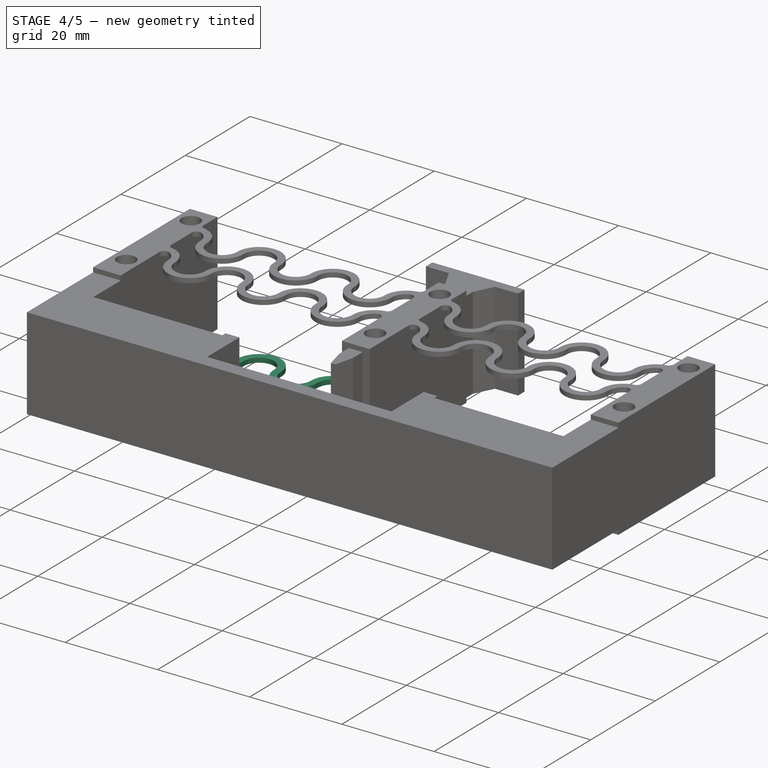
[diagram: stage 4 of 5 — iso view after this stage's code; geometry added in this stage tinted green]
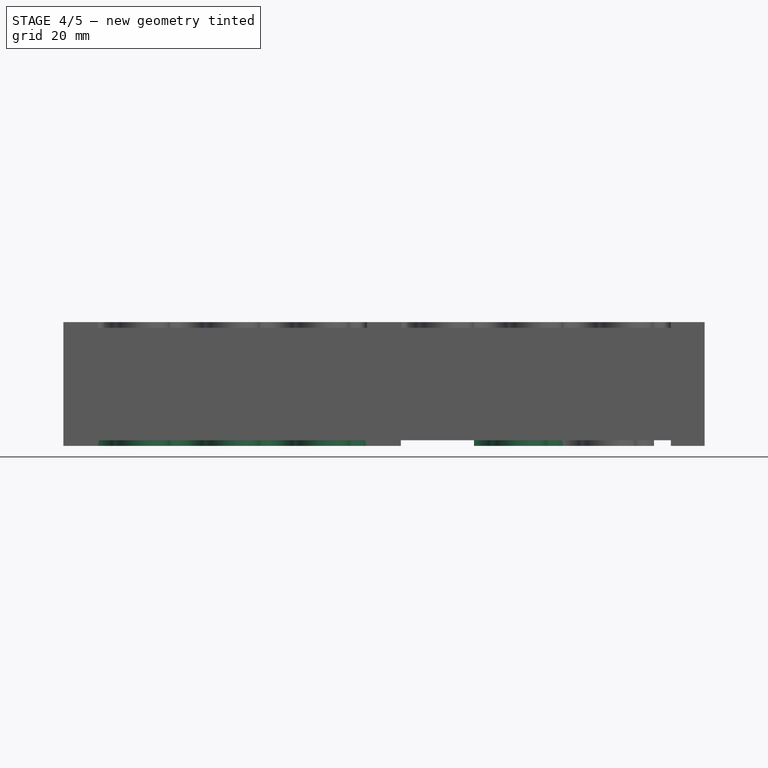
[diagram: stage 4 of 5 — front view after this stage's code; geometry added in this stage tinted green]
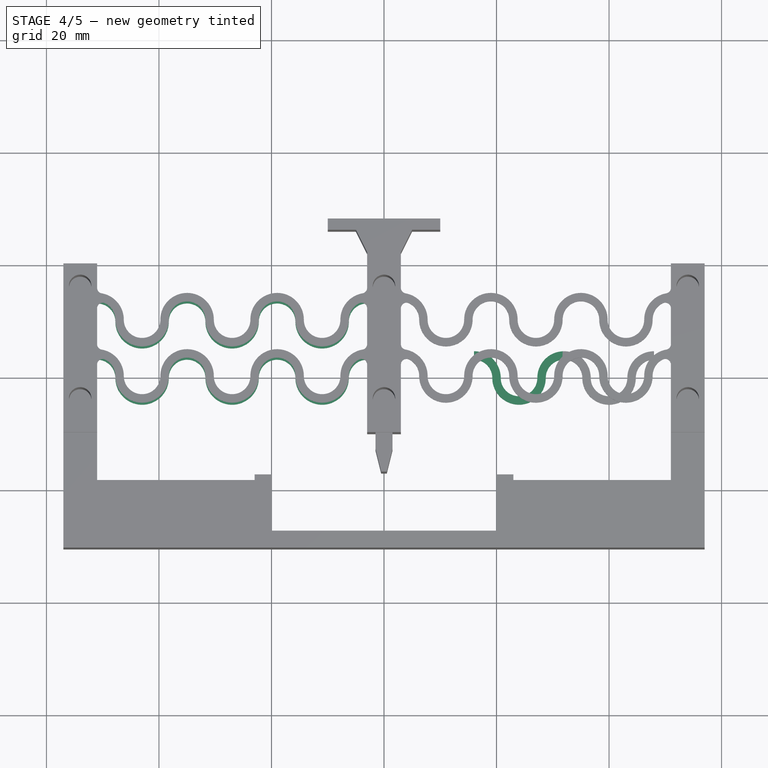
[diagram: stage 4 of 5 — top view after this stage's code; geometry added in this stage tinted green]
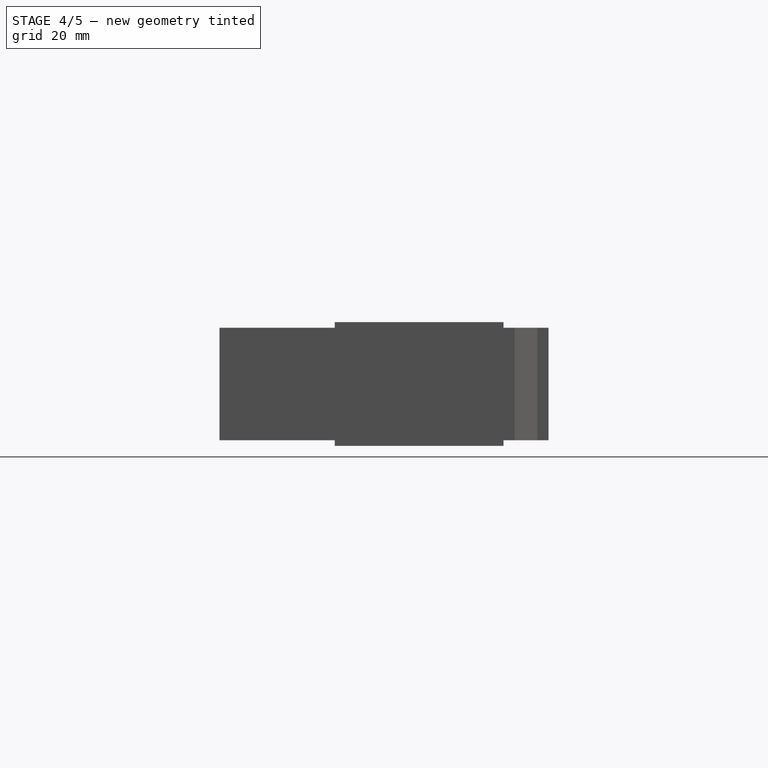
[diagram: stage 4 of 5 — right view after this stage's code; geometry added in this stage tinted green]
FEATURE [Sketcher::SketchObject] Sketch008
  Placement = pos=(0,4,0) rot=(0.57735,0.57735,0.57735;2.0944rad)
  sketch-geometry (4):
    g0: LineSegment StartX=-0.75 StartY=-0.5 StartZ=0 EndX=0.75 EndY=-0.5 EndZ=0
    g1: LineSegment StartX=0.75 StartY=-0.5 StartZ=0 EndX=0.75 EndY=0.5 EndZ=0
    g2: LineSegment StartX=0.75 StartY=0.5 StartZ=0 EndX=-0.75 EndY=0.5 EndZ=0
    g3: LineSegment StartX=-0.75 StartY=0.5 StartZ=0 EndX=-0.75 EndY=-0.5 EndZ=0
  constraints (12):
    c: Coincident(g0,g1)
    c: Coincident(g1,g2)
    c: Coincident(g2,g3)
    c: Coincident(g3,g0)
    c: Horizontal(g0)
    c: Horizontal(g2)
    c: Vertical(g1)
    c: Vertical(g3)
    c: Symmetric(g1,g2,g-2)
    c: Symmetric(g1,g0,g-1)
    c: DistanceX(g2,g1) = 1.5
    c: DistanceY(g0,g1) = 1
FEATURE [Sketcher::SketchObject] Sketch009
  sketch-geometry (3):
    g0: ArcOfCircle CenterX=0 CenterY=0 CenterZ=0 NormalX=0 NormalY=0 NormalZ=1 Radius=4 StartAngle=6.571e-09 EndAngle=1.5708
    g1: ArcOfCircle CenterX=8 CenterY=0 CenterZ=0 NormalX=0 NormalY=0 NormalZ=1 Radius=4 StartAngle=3.14159 EndAngle=6.28319
    g2: ArcOfCircle CenterX=16 CenterY=0 CenterZ=0 NormalX=0 NormalY=0 NormalZ=1 Radius=4 StartAngle=1.5708 EndAngle=3.14159
  constraints (12):
    c: Coincident(g1,g0)
    c: Coincident(g2,g1)
    c: DistanceX(g-1,g0) = 0
    c: DistanceY(g0,g-1) = 0
    c: DistanceX(g-1,g0) = 4
    c: DistanceX(g0,g1) = 4
    c: DistanceY(g1,g-1) = 0
    c: DistanceY(g-1,g1) = 0
    c: DistanceY(g-1,g2) = 0
    c: DistanceX(g1,g1) = 4
    c: DistanceX(g1,g2) = 4
    c: DistanceX(g2,g2) = 0
FEATURE [Part::Sweep] Sweep004
  Frenet = true
  Placement = pos=(16,0,0) rot=(0,0,1;0rad)
  Sections = -> [Sketch008]
  Solid = true
  Spine = -> Sketch009 [Edge3,Edge2,Edge1]
  Transition = 1
FEATURE [Sketcher::SketchObject] Sketch010
  Placement = pos=(0,4,0) rot=(0.57735,0.57735,0.57735;2.0944rad)
  sketch-geometry (4):
    g0: LineSegment StartX=-0.75 StartY=-0.5 StartZ=0 EndX=0.75 EndY=-0.5 EndZ=0
    g1: LineSegment StartX=0.75 StartY=-0.5 StartZ=0 EndX=0.75 EndY=0.5 EndZ=0
    g2: LineSegment StartX=0.75 StartY=0.5 StartZ=0 EndX=-0.75 EndY=0.5 EndZ=0
    g3: LineSegment StartX=-0.75 StartY=0.5 StartZ=0 EndX=-0.75 EndY=-0.5 EndZ=0
  constraints (12):
    c: Coincident(g0,g1)
    c: Coincident(g1,g2)
    c: Coincident(g2,g3)
    c: Coincident(g3,g0)
    c: Horizontal(g0)
    c: Horizontal(g2)
    c: Vertical(g1)
    c: Vertical(g3)
    c: Symmetric(g1,g2,g-2)
    c: Symmetric(g1,g0,g-1)
    c: DistanceX(g2,g1) = 1.5
    c: DistanceY(g0,g1) = 1
FEATURE [Sketcher::SketchObject] Sketch011
  sketch-geometry (3):
    g0: ArcOfCircle CenterX=0 CenterY=0 CenterZ=0 NormalX=0 NormalY=0 NormalZ=1 Radius=4 StartAngle=6.571e-09 EndAngle=1.5708
    g1: ArcOfCircle CenterX=8 CenterY=0 CenterZ=0 NormalX=0 NormalY=0 NormalZ=1 Radius=4 StartAngle=3.14159 EndAngle=6.28319
    g2: ArcOfCircle CenterX=16 CenterY=0 CenterZ=0 NormalX=0 NormalY=0 NormalZ=1 Radius=4 StartAngle=1.5708 EndAngle=3.14159
  constraints (12):
    c: Coincident(g1,g0)
    c: Coincident(g2,g1)
    c: DistanceX(g-1,g0) = 0
    c: DistanceY(g0,g-1) = 0
    c: DistanceX(g-1,g0) = 4
    c: DistanceX(g0,g1) = 4
    c: DistanceY(g1,g-1) = 0
    c: DistanceY(g-1,g1) = 0
    c: DistanceY(g-1,g2) = 0
    c: DistanceX(g1,g1) = 4
    c: DistanceX(g1,g2) = 4
    c: DistanceX(g2,g2) = 0
FEATURE [Part::Sweep] Sweep005
  Frenet = true
  Placement = pos=(32,0,0) rot=(0,0,1;0rad)
  Sections = -> [Sketch010]
  Solid = true
  Spine = -> Sketch011 [Edge3,Edge2,Edge1]
  Transition = 1
FEATURE [Sketcher::SketchObject] Sketch012
  Placement = pos=(0,4,0) rot=(0.57735,0.57735,0.57735;2.0944rad)
  sketch-geometry (4):
    g0: LineSegment StartX=-0.75 StartY=-0.5 StartZ=0 EndX=0.75 EndY=-0.5 EndZ=0
    g1: LineSegment StartX=0.75 StartY=-0.5 StartZ=0 EndX=0.75 EndY=0.5 EndZ=0
    g2: LineSegment StartX=0.75 StartY=0.5 StartZ=0 EndX=-0.75 EndY=0.5 EndZ=0
    g3: LineSegment StartX=-0.75 StartY=0.5 StartZ=0 EndX=-0.75 EndY=-0.5 EndZ=0
  constraints (12):
    c: Coincident(g0,g1)
    c: Coincident(g1,g2)
    c: Coincident(g2,g3)
    c: Coincident(g3,g0)
    c: Horizontal(g0)
    c: Horizontal(g2)
    c: Vertical(g1)
    c: Vertical(g3)
    c: Symmetric(g1,g2,g-2)
    c: Symmetric(g1,g0,g-1)
    c: DistanceX(g2,g1) = 1.5
    c: DistanceY(g0,g1) = 1
FEATURE [Sketcher::SketchObject] Sketch013
  sketch-geometry (3):
    g0: ArcOfCircle CenterX=0 CenterY=0 CenterZ=0 NormalX=0 NormalY=0 NormalZ=1 Radius=4 StartAngle=6.571e-09 EndAngle=1.5708
    g1: ArcOfCircle CenterX=8 CenterY=0 CenterZ=0 NormalX=0 NormalY=0 NormalZ=1 Radius=4 StartAngle=3.14159 EndAngle=6.28319
    g2: ArcOfCircle CenterX=16 CenterY=0 CenterZ=0 NormalX=0 NormalY=0 NormalZ=1 Radius=4 StartAngle=1.5708 EndAngle=3.14159
  constraints (12):
    c: Coincident(g1,g0)
    c: Coincident(g2,g1)
    c: DistanceX(g-1,g0) = 0
    c: DistanceY(g0,g-1) = 0
    c: DistanceX(g-1,g0) = 4
    c: DistanceX(g0,g1) = 4
    c: DistanceY(g1,g-1) = 0
    c: DistanceY(g-1,g1) = 0
    c: DistanceY(g-1,g2) = 0
    c: DistanceX(g1,g1) = 4
    c: DistanceX(g1,g2) = 4
    c: DistanceX(g2,g2) = 0
FEATURE [Part::Sweep] Sweep006
  Frenet = true
  Sections = -> [Sketch012]
  Solid = true
  Spine = -> Sketch013 [Edge3,Edge2,Edge1]
  Transition = 1
FEATURE [Sketcher::SketchObject] Sketch014
  Placement = pos=(0,4,0) rot=(0.57735,0.57735,0.57735;2.0944rad)
  sketch-geometry (4):
    g0: LineSegment StartX=-0.75 StartY=-0.5 StartZ=0 EndX=0.75 EndY=-0.5 EndZ=0
    g1: LineSegment StartX=0.75 StartY=-0.5 StartZ=0 EndX=0.75 EndY=0.5 EndZ=0
    g2: LineSegment StartX=0.75 StartY=0.5 StartZ=0 EndX=-0.75 EndY=0.5 EndZ=0
    g3: LineSegment StartX=-0.75 StartY=0.5 StartZ=0 EndX=-0.75 EndY=-0.5 EndZ=0
  constraints (12):
    c: Coincident(g0,g1)
    c: Coincident(g1,g2)
    c: Coincident(g2,g3)
    c: Coincident(g3,g0)
    c: Horizontal(g0)
    c: Horizontal(g2)
    c: Vertical(g1)
    c: Vertical(g3)
    c: Symmetric(g1,g2,g-2)
    c: Symmetric(g1,g0,g-1)
    c: DistanceX(g2,g1) = 1.5
    c: DistanceY(g0,g1) = 1
FEATURE [Sketcher::SketchObject] Sketch015
  sketch-geometry (3):
    g0: ArcOfCircle CenterX=0 CenterY=0 CenterZ=0 NormalX=0 NormalY=0 NormalZ=1 Radius=4 StartAngle=6.571e-09 EndAngle=1.5708
    g1: ArcOfCircle CenterX=8 CenterY=0 CenterZ=0 NormalX=0 NormalY=0 NormalZ=1 Radius=4 StartAngle=3.14159 EndAngle=6.28319
    g2: ArcOfCircle CenterX=16 CenterY=0 CenterZ=0 NormalX=0 NormalY=0 NormalZ=1 Radius=4 StartAngle=1.5708 EndAngle=3.14159
  constraints (12):
    c: Coincident(g1,g0)
    c: Coincident(g2,g1)
    c: DistanceX(g-1,g0) = 0
    c: DistanceY(g0,g-1) = 0
    c: DistanceX(g-1,g0) = 4
    c: DistanceX(g0,g1) = 4
    c: DistanceY(g1,g-1) = 0
    c: DistanceY(g-1,g1) = 0
    c: DistanceY(g-1,g2) = 0
    c: DistanceX(g1,g1) = 4
    c: DistanceX(g1,g2) = 4
    c: DistanceX(g2,g2) = 0
FEATURE [Part::Sweep] Sweep007
  Frenet = true
  Placement = pos=(16,0,0) rot=(0,0,1;0rad)
  Sections = -> [Sketch014]
  Solid = true
  Spine = -> Sketch015 [Edge3,Edge2,Edge1]
  Transition = 1
FEATURE [Sketcher::SketchObject] Sketch016
  Placement = pos=(0,4,0) rot=(0.57735,0.57735,0.57735;2.0944rad)
  sketch-geometry (4):
    g0: LineSegment StartX=-0.75 StartY=-0.5 StartZ=0 EndX=0.75 EndY=-0.5 EndZ=0
    g1: LineSegment StartX=0.75 StartY=-0.5 StartZ=0 EndX=0.75 EndY=0.5 EndZ=0
    g2: LineSegment StartX=0.75 StartY=0.5 StartZ=0 EndX=-0.75 EndY=0.5 EndZ=0
    g3: LineSegment StartX=-0.75 StartY=0.5 StartZ=0 EndX=-0.75 EndY=-0.5 EndZ=0
  constraints (12):
    c: Coincident(g0,g1)
    c: Coincident(g1,g2)
    c: Coincident(g2,g3)
    c: Coincident(g3,g0)
    c: Horizontal(g0)
    c: Horizontal(g2)
    c: Vertical(g1)
    c: Vertical(g3)
    c: Symmetric(g1,g2,g-2)
    c: Symmetric(g1,g0,g-1)
    c: DistanceX(g2,g1) = 1.5
    c: DistanceY(g0,g1) = 1
FEATURE [Sketcher::SketchObject] Sketch017
  sketch-geometry (3):
    g0: ArcOfCircle CenterX=0 CenterY=0 CenterZ=0 NormalX=0 NormalY=0 NormalZ=1 Radius=4 StartAngle=6.571e-09 EndAngle=1.5708
    g1: ArcOfCircle CenterX=8 CenterY=0 CenterZ=0 NormalX=0 NormalY=0 NormalZ=1 Radius=4 StartAngle=3.14159 EndAngle=6.28319
    g2: ArcOfCircle CenterX=16 CenterY=0 CenterZ=0 NormalX=0 NormalY=0 NormalZ=1 Radius=4 StartAngle=1.5708 EndAngle=3.14159
  constraints (12):
    c: Coincident(g1,g0)
    c: Coincident(g2,g1)
    c: DistanceX(g-1,g0) = 0
    c: DistanceY(g0,g-1) = 0
    c: DistanceX(g-1,g0) = 4
    c: DistanceX(g0,g1) = 4
    c: DistanceY(g1,g-1) = 0
    c: DistanceY(g-1,g1) = 0
    c: DistanceY(g-1,g2) = 0
    c: DistanceX(g1,g1) = 4
    c: DistanceX(g1,g2) = 4
    c: DistanceX(g2,g2) = 0
FEATURE [Part::Sweep] Sweep008
  Frenet = true
  Placement = pos=(32,0,0) rot=(0,0,1;0rad)
  Sections = -> [Sketch016]
  Solid = true
  Spine = -> Sketch017 [Edge3,Edge2,Edge1]
  Transition = 1
FEATURE [Part::MultiFuse] Fusion002
  Placement = pos=(-51,0,0) rot=(0,0,1;0rad)
  Shapes = -> [Sweep006,Sweep007,Sweep008]
FEATURE [Sketcher::SketchObject] Sketch018
  Placement = pos=(0,4,0) rot=(0.57735,0.57735,0.57735;2.0944rad)
  sketch-geometry (4):
    g0: LineSegment StartX=-0.75 StartY=-0.5 StartZ=0 EndX=0.75 EndY=-0.5 EndZ=0
    g1: LineSegment StartX=0.75 StartY=-0.5 StartZ=0 EndX=0.75 EndY=0.5 EndZ=0
    g2: LineSegment StartX=0.75 StartY=0.5 StartZ=0 EndX=-0.75 EndY=0.5 EndZ=0
    g3: LineSegment StartX=-0.75 StartY=0.5 StartZ=0 EndX=-0.75 EndY=-0.5 EndZ=0
  constraints (12):
    c: Coincident(g0,g1)
    c: Coincident(g1,g2)
    c: Coincident(g2,g3)
    c: Coincident(g3,g0)
    c: Horizontal(g0)
    c: Horizontal(g2)
    c: Vertical(g1)
    c: Vertical(g3)
    c: Symmetric(g1,g2,g-2)
    c: Symmetric(g1,g0,g-1)
    c: DistanceX(g2,g1) = 1.5
    c: DistanceY(g0,g1) = 1
FEATURE [Sketcher::SketchObject] Sketch019
  sketch-geometry (3):
    g0: ArcOfCircle CenterX=0 CenterY=0 CenterZ=0 NormalX=0 NormalY=0 NormalZ=1 Radius=4 StartAngle=6.571e-09 EndAngle=1.5708
    g1: ArcOfCircle CenterX=8 CenterY=0 CenterZ=0 NormalX=0 NormalY=0 NormalZ=1 Radius=4 StartAngle=3.14159 EndAngle=6.28319
    g2: ArcOfCircle CenterX=16 CenterY=0 CenterZ=0 NormalX=0 NormalY=0 NormalZ=1 Radius=4 StartAngle=1.5708 EndAngle=3.14159
  constraints (12):
    c: Coincident(g1,g0)
    c: Coincident(g2,g1)
    c: DistanceX(g-1,g0) = 0
    c: DistanceY(g0,g-1) = 0
    c: DistanceX(g-1,g0) = 4
    c: DistanceX(g0,g1) = 4
    c: DistanceY(g1,g-1) = 0
    c: DistanceY(g-1,g1) = 0
    c: DistanceY(g-1,g2) = 0
    c: DistanceX(g1,g1) = 4
    c: DistanceX(g1,g2) = 4
    c: DistanceX(g2,g2) = 0
FEATURE [Part::Sweep] Sweep009
  Frenet = true
  Sections = -> [Sketch018]
  Solid = true
  Spine = -> Sketch019 [Edge3,Edge2,Edge1]
  Transition = 1
FEATURE [Sketcher::SketchObject] Sketch020
  Placement = pos=(0,4,0) rot=(0.57735,0.57735,0.57735;2.0944rad)
  sketch-geometry (4):
    g0: LineSegment StartX=-0.75 StartY=-0.5 StartZ=0 EndX=0.75 EndY=-0.5 EndZ=0
    g1: LineSegment StartX=0.75 StartY=-0.5 StartZ=0 EndX=0.75 EndY=0.5 EndZ=0
    g2: LineSegment StartX=0.75 StartY=0.5 StartZ=0 EndX=-0.75 EndY=0.5 EndZ=0
    g3: LineSegment StartX=-0.75 StartY=0.5 StartZ=0 EndX=-0.75 EndY=-0.5 EndZ=0
  constraints (12):
    c: Coincident(g0,g1)
    c: Coincident(g1,g2)
    c: Coincident(g2,g3)
    c: Coincident(g3,g0)
    c: Horizontal(g0)
    c: Horizontal(g2)
    c: Vertical(g1)
    c: Vertical(g3)
    c: Symmetric(g1,g2,g-2)
    c: Symmetric(g1,g0,g-1)
    c: DistanceX(g2,g1) = 1.5
    c: DistanceY(g0,g1) = 1
FEATURE [Sketcher::SketchObject] Sketch021
  sketch-geometry (3):
    g0: ArcOfCircle CenterX=0 CenterY=0 CenterZ=0 NormalX=0 NormalY=0 NormalZ=1 Radius=4 StartAngle=6.571e-09 EndAngle=1.5708
    g1: ArcOfCircle CenterX=8 CenterY=0 CenterZ=0 NormalX=0 NormalY=0 NormalZ=1 Radius=4 StartAngle=3.14159 EndAngle=6.28319
    g2: ArcOfCircle CenterX=16 CenterY=0 CenterZ=0 NormalX=0 NormalY=0 NormalZ=1 Radius=4 StartAngle=1.5708 EndAngle=3.14159
  constraints (12):
    c: Coincident(g1,g0)
    c: Coincident(g2,g1)
    c: DistanceX(g-1,g0) = 0
    c: DistanceY(g0,g-1) = 0
    c: DistanceX(g-1,g0) = 4
    c: DistanceX(g0,g1) = 4
    c: DistanceY(g1,g-1) = 0
    c: DistanceY(g-1,g1) = 0
    c: DistanceY(g-1,g2) = 0
    c: DistanceX(g1,g1) = 4
    c: DistanceX(g1,g2) = 4
    c: DistanceX(g2,g2) = 0
FEATURE [Part::Sweep] Sweep010
  Frenet = true
  Placement = pos=(16,0,0) rot=(0,0,1;0rad)
  Sections = -> [Sketch020]
  Solid = true
  Spine = -> Sketch021 [Edge3,Edge2,Edge1]
  Transition = 1
FEATURE [Part::MultiFuse] Fusion003
  Placement = pos=(-51,10,0) rot=(0,0,1;0rad)
  Shapes = -> [Sweep009,Sweep010,Sweep011]
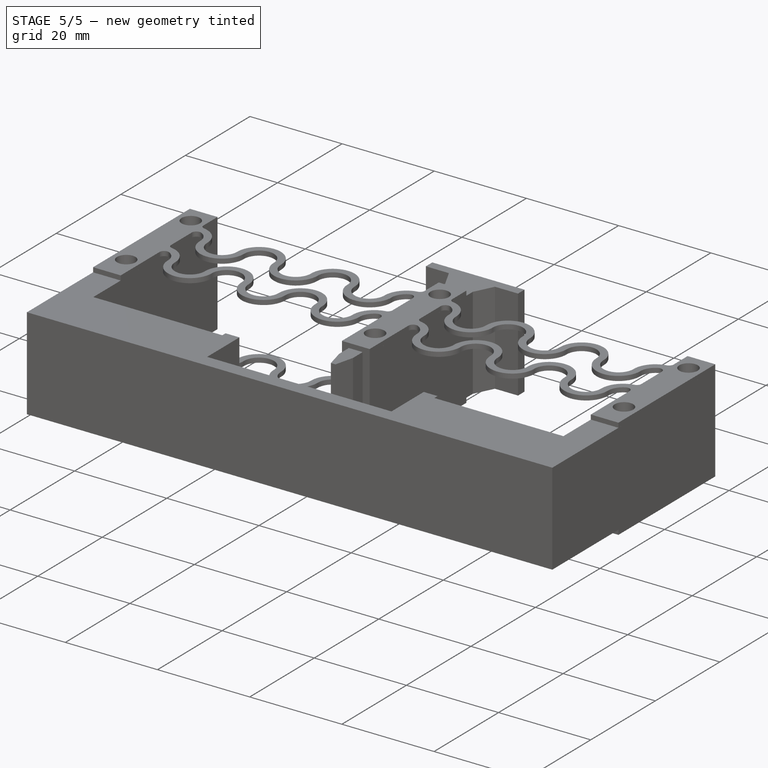
[diagram: stage 5 of 5 — iso view after this stage's code; geometry added in this stage tinted green]
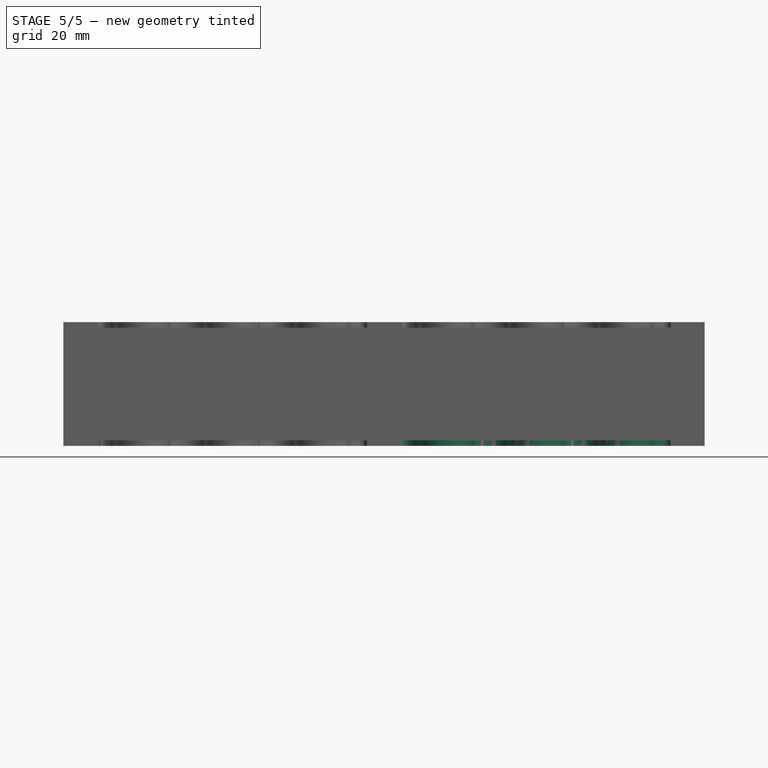
[diagram: stage 5 of 5 — front view after this stage's code; geometry added in this stage tinted green]
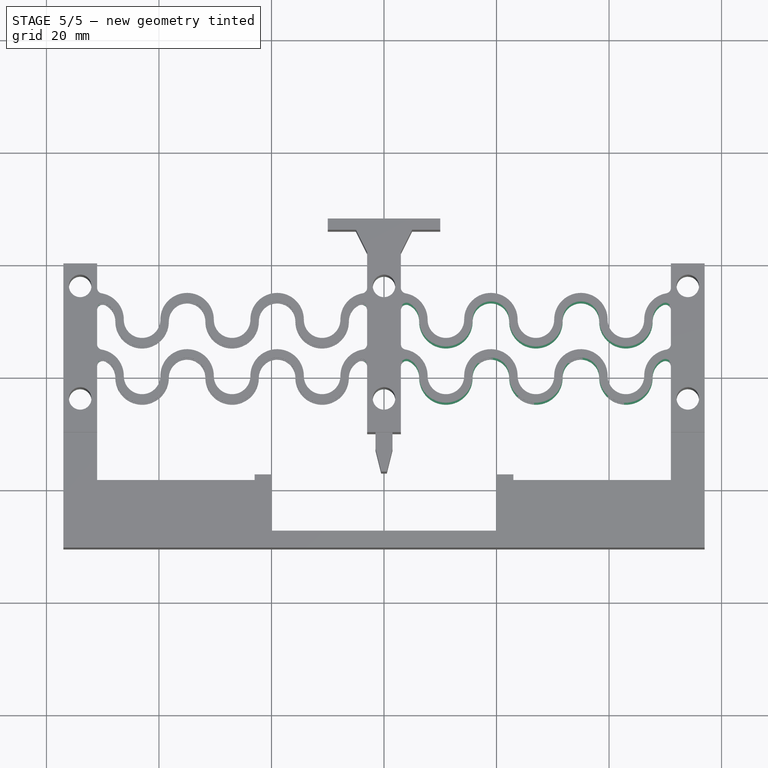
[diagram: stage 5 of 5 — top view after this stage's code; geometry added in this stage tinted green]
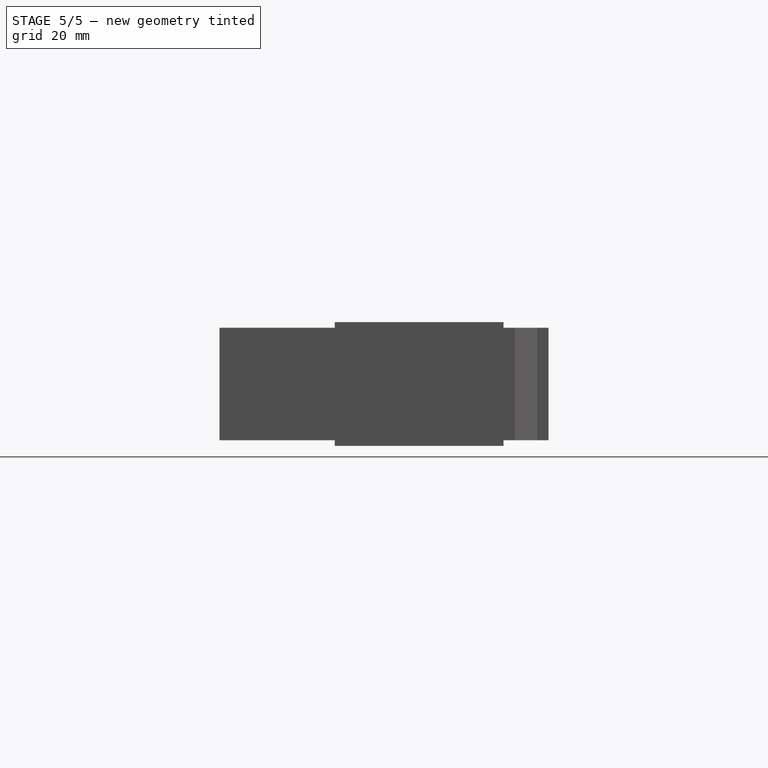
[diagram: stage 5 of 5 — right view after this stage's code; geometry added in this stage tinted green]
FEATURE [Sketcher::SketchObject] Sketch001
  Placement = pos=(0,4,0) rot=(0.57735,0.57735,0.57735;2.0944rad)
  sketch-geometry (4):
    g0: LineSegment StartX=-0.75 StartY=-0.5 StartZ=0 EndX=0.75 EndY=-0.5 EndZ=0
    g1: LineSegment StartX=0.75 StartY=-0.5 StartZ=0 EndX=0.75 EndY=0.5 EndZ=0
    g2: LineSegment StartX=0.75 StartY=0.5 StartZ=0 EndX=-0.75 EndY=0.5 EndZ=0
    g3: LineSegment StartX=-0.75 StartY=0.5 StartZ=0 EndX=-0.75 EndY=-0.5 EndZ=0
  constraints (12):
    c: Coincident(g0,g1)
    c: Coincident(g1,g2)
    c: Coincident(g2,g3)
    c: Coincident(g3,g0)
    c: Horizontal(g0)
    c: Horizontal(g2)
    c: Vertical(g1)
    c: Vertical(g3)
    c: Symmetric(g1,g2,g-2)
    c: Symmetric(g1,g0,g-1)
    c: DistanceX(g2,g1) = 1.5
    c: DistanceY(g0,g1) = 1
FEATURE [Sketcher::SketchObject] Sketch
  sketch-geometry (3):
    g0: ArcOfCircle CenterX=0 CenterY=0 CenterZ=0 NormalX=0 NormalY=0 NormalZ=1 Radius=4 StartAngle=6.571e-09 EndAngle=1.5708
    g1: ArcOfCircle CenterX=8 CenterY=0 CenterZ=0 NormalX=0 NormalY=0 NormalZ=1 Radius=4 StartAngle=3.14159 EndAngle=6.28319
    g2: ArcOfCircle CenterX=16 CenterY=0 CenterZ=0 NormalX=0 NormalY=0 NormalZ=1 Radius=4 StartAngle=1.5708 EndAngle=3.14159
  constraints (12):
    c: Coincident(g1,g0)
    c: Coincident(g2,g1)
    c: DistanceX(g-1,g0) = 0
    c: DistanceY(g0,g-1) = 0
    c: DistanceX(g-1,g0) = 4
    c: DistanceX(g0,g1) = 4
    c: DistanceY(g1,g-1) = 0
    c: DistanceY(g-1,g1) = 0
    c: DistanceY(g-1,g2) = 0
    c: DistanceX(g1,g1) = 4
    c: DistanceX(g1,g2) = 4
    c: DistanceX(g2,g2) = 0
FEATURE [Part::Sweep] Sweep
  Frenet = true
  Sections = -> [Sketch001]
  Solid = true
  Spine = -> Sketch [Edge3,Edge2,Edge1]
  Transition = 1
FEATURE [Sketcher::SketchObject] Sketch002
  Placement = pos=(0,4,0) rot=(0.57735,0.57735,0.57735;2.0944rad)
  sketch-geometry (4):
    g0: LineSegment StartX=-0.75 StartY=-0.5 StartZ=0 EndX=0.75 EndY=-0.5 EndZ=0
    g1: LineSegment StartX=0.75 StartY=-0.5 StartZ=0 EndX=0.75 EndY=0.5 EndZ=0
    g2: LineSegment StartX=0.75 StartY=0.5 StartZ=0 EndX=-0.75 EndY=0.5 EndZ=0
    g3: LineSegment StartX=-0.75 StartY=0.5 StartZ=0 EndX=-0.75 EndY=-0.5 EndZ=0
  constraints (12):
    c: Coincident(g0,g1)
    c: Coincident(g1,g2)
    c: Coincident(g2,g3)
    c: Coincident(g3,g0)
    c: Horizontal(g0)
    c: Horizontal(g2)
    c: Vertical(g1)
    c: Vertical(g3)
    c: Symmetric(g1,g2,g-2)
    c: Symmetric(g1,g0,g-1)
    c: DistanceX(g2,g1) = 1.5
    c: DistanceY(g0,g1) = 1
FEATURE [Sketcher::SketchObject] Sketch003
  sketch-geometry (3):
    g0: ArcOfCircle CenterX=0 CenterY=0 CenterZ=0 NormalX=0 NormalY=0 NormalZ=1 Radius=4 StartAngle=6.571e-09 EndAngle=1.5708
    g1: ArcOfCircle CenterX=8 CenterY=0 CenterZ=0 NormalX=0 NormalY=0 NormalZ=1 Radius=4 StartAngle=3.14159 EndAngle=6.28319
    g2: ArcOfCircle CenterX=16 CenterY=0 CenterZ=0 NormalX=0 NormalY=0 NormalZ=1 Radius=4 StartAngle=1.5708 EndAngle=3.14159
  constraints (12):
    c: Coincident(g1,g0)
    c: Coincident(g2,g1)
    c: DistanceX(g-1,g0) = 0
    c: DistanceY(g0,g-1) = 0
    c: DistanceX(g-1,g0) = 4
    c: DistanceX(g0,g1) = 4
    c: DistanceY(g1,g-1) = 0
    c: DistanceY(g-1,g1) = 0
    c: DistanceY(g-1,g2) = 0
    c: DistanceX(g1,g1) = 4
    c: DistanceX(g1,g2) = 4
    c: DistanceX(g2,g2) = 0
FEATURE [Part::Sweep] Sweep001
  Frenet = true
  Placement = pos=(16,0,0) rot=(0,0,1;0rad)
  Sections = -> [Sketch002]
  Solid = true
  Spine = -> Sketch003 [Edge3,Edge2,Edge1]
  Transition = 1
FEATURE [Sketcher::SketchObject] Sketch004
  Placement = pos=(0,4,0) rot=(0.57735,0.57735,0.57735;2.0944rad)
  sketch-geometry (4):
    g0: LineSegment StartX=-0.75 StartY=-0.5 StartZ=0 EndX=0.75 EndY=-0.5 EndZ=0
    g1: LineSegment StartX=0.75 StartY=-0.5 StartZ=0 EndX=0.75 EndY=0.5 EndZ=0
    g2: LineSegment StartX=0.75 StartY=0.5 StartZ=0 EndX=-0.75 EndY=0.5 EndZ=0
    g3: LineSegment StartX=-0.75 StartY=0.5 StartZ=0 EndX=-0.75 EndY=-0.5 EndZ=0
  constraints (12):
    c: Coincident(g0,g1)
    c: Coincident(g1,g2)
    c: Coincident(g2,g3)
    c: Coincident(g3,g0)
    c: Horizontal(g0)
    c: Horizontal(g2)
    c: Vertical(g1)
    c: Vertical(g3)
    c: Symmetric(g1,g2,g-2)
    c: Symmetric(g1,g0,g-1)
    c: DistanceX(g2,g1) = 1.5
    c: DistanceY(g0,g1) = 1
FEATURE [Sketcher::SketchObject] Sketch005
  sketch-geometry (3):
    g0: ArcOfCircle CenterX=0 CenterY=0 CenterZ=0 NormalX=0 NormalY=0 NormalZ=1 Radius=4 StartAngle=6.571e-09 EndAngle=1.5708
    g1: ArcOfCircle CenterX=8 CenterY=0 CenterZ=0 NormalX=0 NormalY=0 NormalZ=1 Radius=4 StartAngle=3.14159 EndAngle=6.28319
    g2: ArcOfCircle CenterX=16 CenterY=0 CenterZ=0 NormalX=0 NormalY=0 NormalZ=1 Radius=4 StartAngle=1.5708 EndAngle=3.14159
  constraints (12):
    c: Coincident(g1,g0)
    c: Coincident(g2,g1)
    c: DistanceX(g-1,g0) = 0
    c: DistanceY(g0,g-1) = 0
    c: DistanceX(g-1,g0) = 4
    c: DistanceX(g0,g1) = 4
    c: DistanceY(g1,g-1) = 0
    c: DistanceY(g-1,g1) = 0
    c: DistanceY(g-1,g2) = 0
    c: DistanceX(g1,g1) = 4
    c: DistanceX(g1,g2) = 4
    c: DistanceX(g2,g2) = 0
FEATURE [Part::Sweep] Sweep002
  Frenet = true
  Placement = pos=(32,0,0) rot=(0,0,1;0rad)
  Sections = -> [Sketch004]
  Solid = true
  Spine = -> Sketch005 [Edge3,Edge2,Edge1]
  Transition = 1
FEATURE [Part::MultiFuse] Fusion
  Placement = pos=(3,0,0) rot=(0,0,1;0rad)
  Shapes = -> [Sweep,Sweep001,Sweep002]
FEATURE [Sketcher::SketchObject] Sketch006
  Placement = pos=(0,4,0) rot=(0.57735,0.57735,0.57735;2.0944rad)
  sketch-geometry (4):
    g0: LineSegment StartX=-0.75 StartY=-0.5 StartZ=0 EndX=0.75 EndY=-0.5 EndZ=0
    g1: LineSegment StartX=0.75 StartY=-0.5 StartZ=0 EndX=0.75 EndY=0.5 EndZ=0
    g2: LineSegment StartX=0.75 StartY=0.5 StartZ=0 EndX=-0.75 EndY=0.5 EndZ=0
    g3: LineSegment StartX=-0.75 StartY=0.5 StartZ=0 EndX=-0.75 EndY=-0.5 EndZ=0
  constraints (12):
    c: Coincident(g0,g1)
    c: Coincident(g1,g2)
    c: Coincident(g2,g3)
    c: Coincident(g3,g0)
    c: Horizontal(g0)
    c: Horizontal(g2)
    c: Vertical(g1)
    c: Vertical(g3)
    c: Symmetric(g1,g2,g-2)
    c: Symmetric(g1,g0,g-1)
    c: DistanceX(g2,g1) = 1.5
    c: DistanceY(g0,g1) = 1
FEATURE [Sketcher::SketchObject] Sketch007
  sketch-geometry (3):
    g0: ArcOfCircle CenterX=0 CenterY=0 CenterZ=0 NormalX=0 NormalY=0 NormalZ=1 Radius=4 StartAngle=6.571e-09 EndAngle=1.5708
    g1: ArcOfCircle CenterX=8 CenterY=0 CenterZ=0 NormalX=0 NormalY=0 NormalZ=1 Radius=4 StartAngle=3.14159 EndAngle=6.28319
    g2: ArcOfCircle CenterX=16 CenterY=0 CenterZ=0 NormalX=0 NormalY=0 NormalZ=1 Radius=4 StartAngle=1.5708 EndAngle=3.14159
  constraints (12):
    c: Coincident(g1,g0)
    c: Coincident(g2,g1)
    c: DistanceX(g-1,g0) = 0
    c: DistanceY(g0,g-1) = 0
    c: DistanceX(g-1,g0) = 4
    c: DistanceX(g0,g1) = 4
    c: DistanceY(g1,g-1) = 0
    c: DistanceY(g-1,g1) = 0
    c: DistanceY(g-1,g2) = 0
    c: DistanceX(g1,g1) = 4
    c: DistanceX(g1,g2) = 4
    c: DistanceX(g2,g2) = 0
FEATURE [Part::Sweep] Sweep003
  Frenet = true
  Sections = -> [Sketch006]
  Solid = true
  Spine = -> Sketch007 [Edge3,Edge2,Edge1]
  Transition = 1
FEATURE [Part::MultiFuse] Fusion001
  Placement = pos=(3,10,0) rot=(0,0,1;0rad)
  Shapes = -> [Sweep003,Sweep004,Sweep005]
FEATURE [Part::MultiFuse] Fusion004
  Shapes = -> [Box002,Box001,Box,Fusion003,Fusion002,Fusion001,Fusion]
FEATURE [Sketcher::SketchObject] Sketch024
  Placement = pos=(0,0,0.5) rot=(0,0,1;0rad)
  Support = -> Fusion004 [Face158]
  sketch-geometry (6):
    g0: Circle CenterX=0 CenterY=-4 CenterZ=0 NormalX=0 NormalY=0 NormalZ=1 Radius=2
    g1: Circle CenterX=0 CenterY=16 CenterZ=0 NormalX=0 NormalY=0 NormalZ=1 Radius=2
    g2: Circle CenterX=-54 CenterY=-4 CenterZ=0 NormalX=0 NormalY=0 NormalZ=1 Radius=2
    g3: Circle CenterX=-54 CenterY=16 CenterZ=0 NormalX=0 NormalY=0 NormalZ=1 Radius=2
    g4: Circle CenterX=54 CenterY=16 CenterZ=0 NormalX=0 NormalY=0 NormalZ=1 Radius=2
    g5: Circle CenterX=54 CenterY=-4 CenterZ=0 NormalX=0 NormalY=0 NormalZ=1 Radius=2
  constraints (18):
    c: DistanceY(g-1,g3) = 16
    c: DistanceY(g2,g-1) = 4
    c: DistanceX(g-1,g0) = 0
    c: DistanceX(g-1,g1) = 0
    c: DistanceY(g1,g3) = 0
    c: DistanceY(g1,g4) = 0
    c: DistanceY(g5,g0) = 0
    c: DistanceY(g2,g0) = 0
    c: DistanceX(g3,g1) = 54
    c: DistanceX(g1,g4) = 54
    c: DistanceX(g5,g4) = 0
    c: Radius(g3) = 2
    c: Radius(g2) = 2
    c: Radius(g0) = 2
    c: Radius(g1) = 2
    c: Radius(g4) = 2
    c: Radius(g5) = 2
    c: DistanceX(g2,g3) = 0
FEATURE [PartDesign::Pocket] Pocket
  Length = 1
  Sketch = -> Sketch024
  Type = 0
FEATURE [PartDesign::Fillet] Fillet
  Base = -> Pocket [Edge334,Edge324,Edge19,Edge44,Edge32,Edge36,Edge312,Edge345,Edge325,Edge344,Edge52,Edge45,Edge346,Edge47,Edge37,Edge343]
  Radius = 1
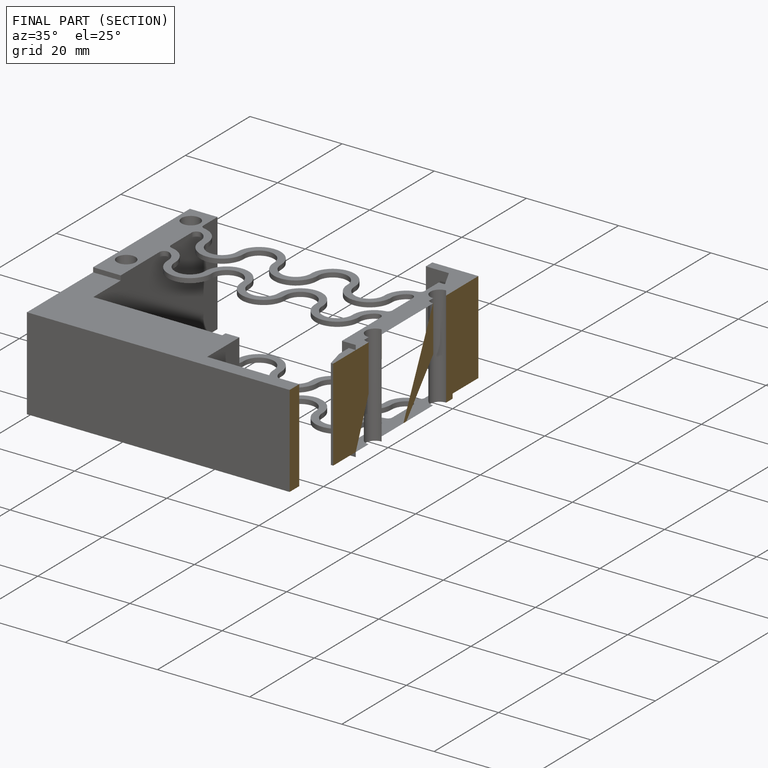
[diagram: finished part — half-section view (interior)]
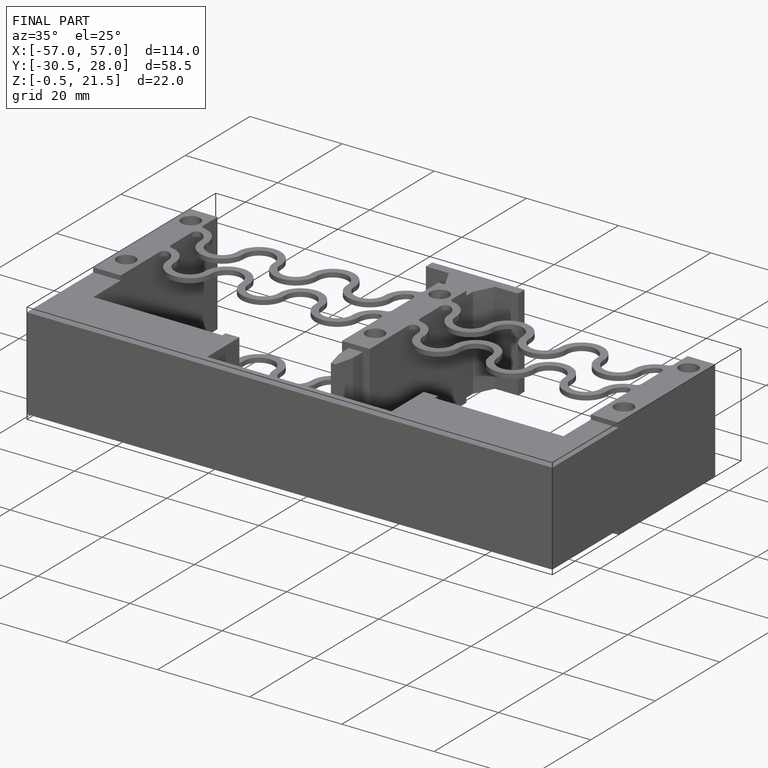
[diagram: finished part — iso view with bounding-box wireframe]
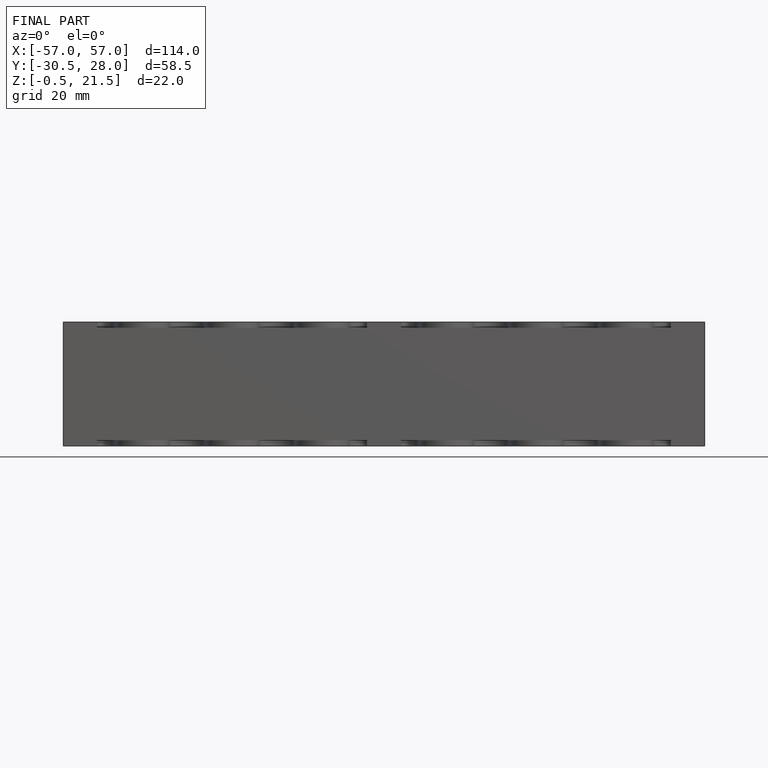
[diagram: finished part — front view with bounding-box wireframe]
